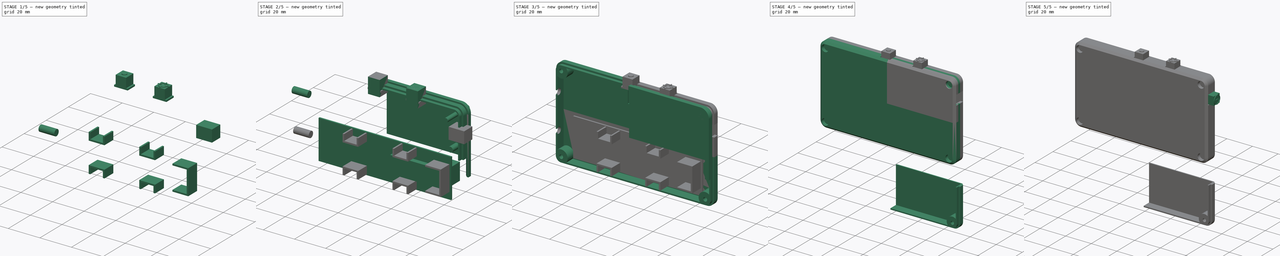
[diagram: build sequence overview — one tinted view per stage of 5, left to right]
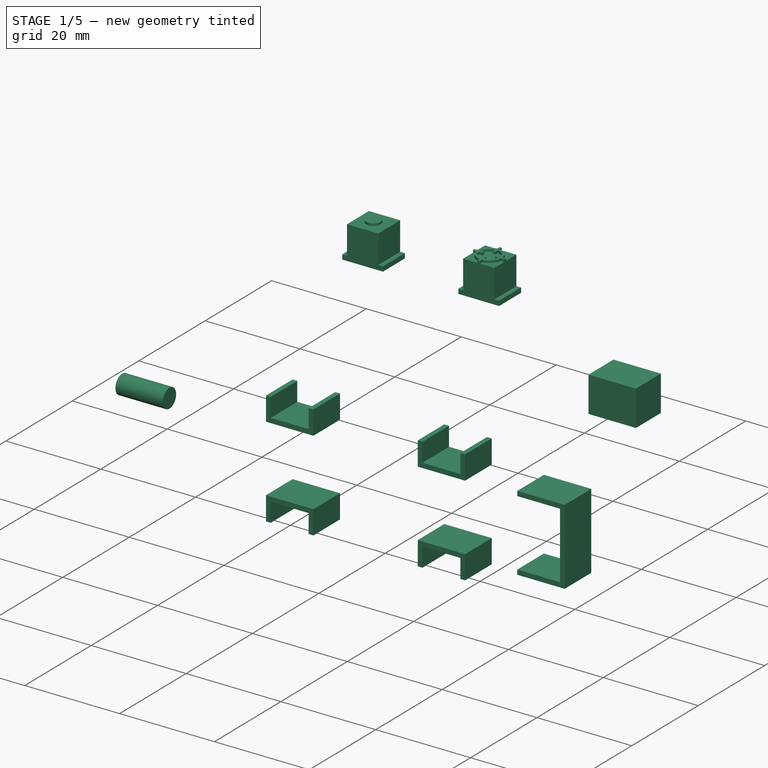
[diagram: stage 1 of 5 — iso view after this stage's code; geometry added in this stage tinted green]
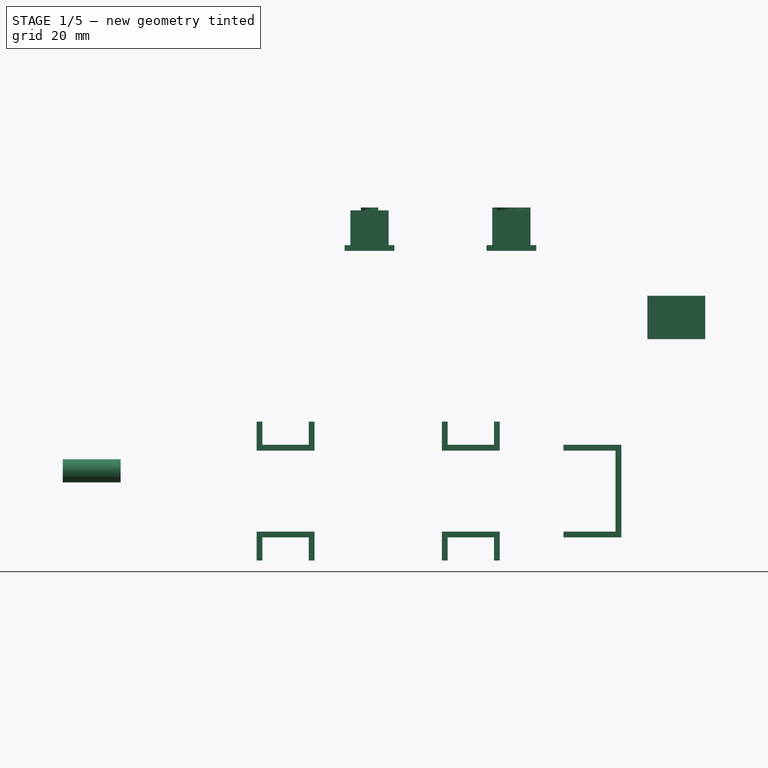
[diagram: stage 1 of 5 — front view after this stage's code; geometry added in this stage tinted green]
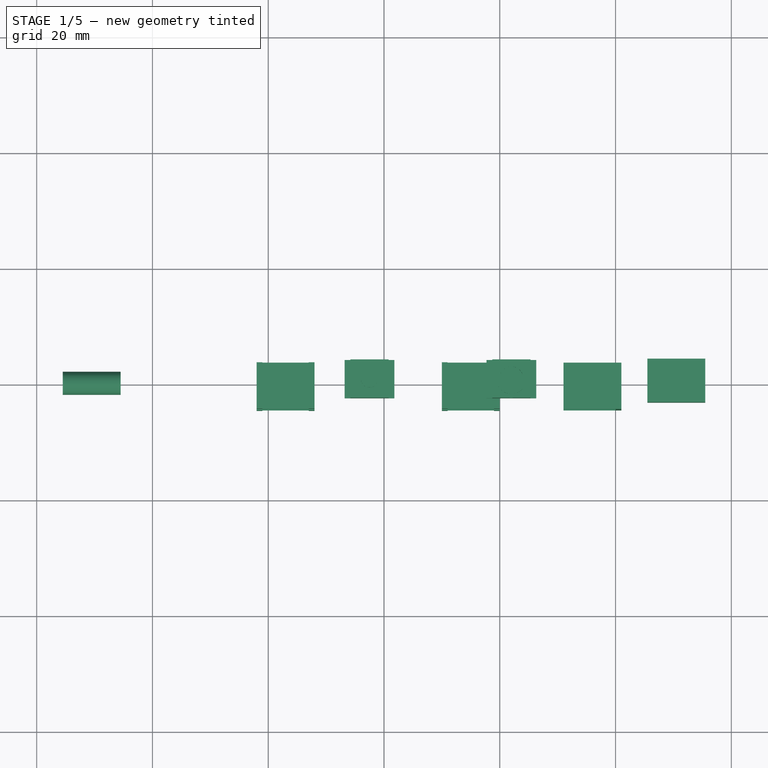
[diagram: stage 1 of 5 — top view after this stage's code; geometry added in this stage tinted green]
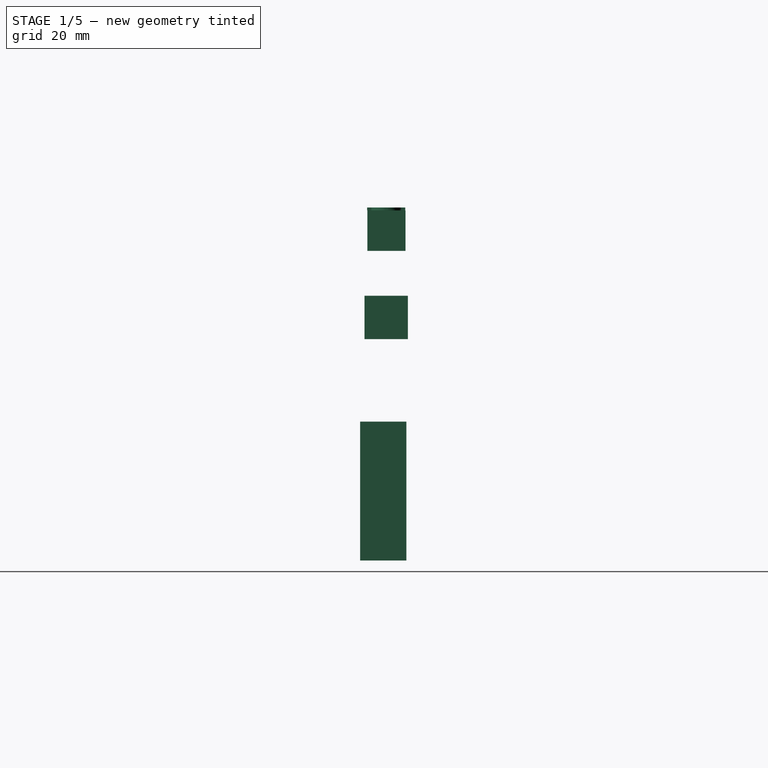
[diagram: stage 1 of 5 — right view after this stage's code; geometry added in this stage tinted green]
FCSTD DOCUMENT  (FreeCAD 0.19R24291 (Git))
Label: intervalometer
License: All rights reserved
LicenseURL: http://en.wikipedia.org/wiki/All_rights_reserved
objects: Sketcher::SketchObject×21, Part::Extrusion×18, Part::Box×11, Part::MultiFuse×11, PartDesign::FeatureBase×8, PartDesign::Body×8, Part::Mirroring×7, Part::Cut×6, Part::Compound×4, Part::Cylinder×3, Part::Sweep×2, Spreadsheet::Sheet×1, Part::Revolution×1
note: 100 computed .brp shape members not serialized (recipe doc carries the construction recipe); baked Part::Feature solids carry a one-line shape summary decoded from their .brp

FEATURE [Sketcher::SketchObject] Sketch013
  FullyConstrained = true
  Placement = pos=(0,-10,0) rot=(1,0,0;1.5708rad)
  sketch-geometry (8):
    g0: LineSegment StartX=-3.3 StartY=7 StartZ=0 EndX=3.3 EndY=7 EndZ=0
    g1: LineSegment StartX=3.3 StartY=7 StartZ=0 EndX=3.3 EndY=1 EndZ=0
    g2: LineSegment StartX=3.3 StartY=1 StartZ=0 EndX=4.3 EndY=1 EndZ=0
    g3: LineSegment StartX=4.3 StartY=1 StartZ=0 EndX=4.3 EndY=0 EndZ=0
    g4: LineSegment StartX=4.3 StartY=0 StartZ=0 EndX=-4.3 EndY=0 EndZ=0
    g5: LineSegment StartX=-4.3 StartY=0 StartZ=0 EndX=-4.3 EndY=1 EndZ=0
    g6: LineSegment StartX=-4.3 StartY=1 StartZ=0 EndX=-3.3 EndY=1 EndZ=0
    g7: LineSegment StartX=-3.3 StartY=1 StartZ=0 EndX=-3.3 EndY=7 EndZ=0
  constraints (24):
    c: Horizontal(g0)
    c: Coincident(g0,g1)
    c: Vertical(g1)
    c: Coincident(g1,g2)
    c: Horizontal(g2)
    c: Coincident(g2,g3)
    c: Vertical(g3)
    c: Coincident(g3,g4)
    c: Horizontal(g4)
    c: Coincident(g4,g5)
    c: Vertical(g5)
    c: Coincident(g5,g6)
    c: Horizontal(g6)
    c: Coincident(g6,g7)
    c: Coincident(g7,g0)
    c: Vertical(g7)
    c: DistanceX(g6,g0) = 6.6
    c: DistanceY(g6,g0) = 6
    c: DistanceX(g4,g6) = 1
    c: DistanceY(g4,g6) = 1
    c: DistanceX(g3,g1) = -1
    c: DistanceY(g3,g1) = 1
    c: PointOnObject(g-1,g4)
    c: DistanceX(g-1,g3) = 4.3
FEATURE [Part::Extrusion] Extrude014
  Base = -> Sketch013
  Dir = (0,-1,-2e-16)
  DirMode = 2
  FaceMakerClass = Part::FaceMakerBullseye
  LengthFwd = 0
  LengthRev = 6.6
  Placement = pos=(0,6.75,0) rot=(0,0,1;0rad)
  Solid = true
  Symmetric = false
FEATURE [Sketcher::SketchObject] Sketch014
  FullyConstrained = true
  Placement = pos=(0,0,-10) rot=(1,0,0;3.14159rad)
  sketch-geometry (4):
    g0: LineSegment StartX=-1.25 StartY=1.75 StartZ=0 EndX=1.25 EndY=1.75 EndZ=0
    g1: LineSegment StartX=1.25 StartY=1.75 StartZ=0 EndX=1.25 EndY=-1.75 EndZ=0
    g2: LineSegment StartX=1.25 StartY=-1.75 StartZ=0 EndX=-1.25 EndY=-1.75 EndZ=0
    g3: LineSegment StartX=-1.25 StartY=-1.75 StartZ=0 EndX=-1.25 EndY=1.75 EndZ=0
  constraints (12):
    c: Coincident(g0,g1)
    c: Coincident(g1,g2)
    c: Coincident(g2,g3)
    c: Coincident(g3,g0)
    c: Horizontal(g0)
    c: Horizontal(g2)
    c: Vertical(g1)
    c: Vertical(g3)
    c: DistanceX(g2,g0) = 2.5
    c: DistanceY(g2,g0) = 3.5
    c: DistanceX(g0,g-1) = -1.25
    c: DistanceY(g0,g-1) = -1.75
FEATURE [Part::Extrusion] Extrude015
  Base = -> Sketch014
  Dir = (0,1e-16,-1)
  DirMode = 2
  FaceMakerClass = Part::FaceMakerBullseye
  LengthFwd = 0
  LengthRev = 4.5
  Placement = pos=(0,0,10) rot=(0,0,1;0rad)
  Solid = true
  Symmetric = false
FEATURE [Part::Cut] Cut023
  Base = -> Extrude014
  Tool = -> Extrude015
FEATURE [Sketcher::SketchObject] Sketch037
  FullyConstrained = true
  Placement = pos=(35,0,0) rot=(0.57735,0.57735,0.57735;2.0944rad)
  sketch-geometry (4):
    g0: LineSegment StartX=-3.75 StartY=42.25 StartZ=0 EndX=3.75 EndY=42.25 EndZ=0
    g1: LineSegment StartX=3.75 StartY=42.25 StartZ=0 EndX=3.75 EndY=34.75 EndZ=0
    g2: LineSegment StartX=3.75 StartY=34.75 StartZ=0 EndX=-3.75 EndY=34.75 EndZ=0
    g3: LineSegment StartX=-3.75 StartY=34.75 StartZ=0 EndX=-3.75 EndY=42.25 EndZ=0
  constraints (12):
    c: Coincident(g0,g1)
    c: Coincident(g1,g2)
    c: Coincident(g2,g3)
    c: Coincident(g3,g0)
    c: Horizontal(g0)
    c: Horizontal(g2)
    c: Vertical(g1)
    c: Vertical(g3)
    c: DistanceX(g2,g0) = 7.5
    c: DistanceY(g2,g0) = 7.5
    c: DistanceX(g2,g-1) = 3.75
    c: DistanceY(g-1,g1) = 34.75
FEATURE [Part::Extrusion] Extrude045  label="switch hole002"
  Base = -> Sketch037
  Dir = (1,0,0)
  DirMode = 2
  FaceMakerClass = Part::FaceMakerBullseye
  LengthFwd = 10
  LengthRev = 0
  Placement = pos=(-9.5,0,0) rot=(0,0,1;0rad)
  Solid = true
  Symmetric = false
FEATURE [PartDesign::Body] Body005  label="switch hole001"
  BaseFeature = -> Extrude045
  Group = -> [Clone005]
  Origin = -> Origin005
  Placement = pos=(40.5,0,22) rot=(0,-1,0;1.5708rad)
  Tip = -> Clone005
FEATURE [PartDesign::FeatureBase] Clone006
  BaseFeature = -> Extrude045
  Placement = pos=(-9.5,0,0) rot=(0,0,1;0rad)
FEATURE [PartDesign::Body] Body006  label="switch hole"
  BaseFeature = -> Extrude045
  Group = -> [Clone006]
  Origin = -> Origin006
  Placement = pos=(16,0,22) rot=(0,-1,0;1.5708rad)
  Tip = -> Clone006
FEATURE [PartDesign::FeatureBase] Clone007
  BaseFeature = -> Cut023
FEATURE [PartDesign::Body] Body007  label="cap002"
  BaseFeature = -> Cut023
  Group = -> [Clone007]
  Origin = -> Origin007
  Tip = -> Clone007
FEATURE [PartDesign::FeatureBase] Clone008
  BaseFeature = -> Body007
FEATURE [PartDesign::Body] Body008  label="cap003"
  BaseFeature = -> Body007
  Group = -> [Clone008]
  Origin = -> Origin008
  Tip = -> Clone008
FEATURE [Sketcher::SketchObject] Sketch038  label="power icon002"
  FullyConstrained = false
  Placement = pos=(0,0,20) rot=(0,0,1;0rad)
  sketch-geometry (2):
    g0: Circle CenterX=0 CenterY=0 CenterZ=0 NormalX=0 NormalY=0 NormalZ=1 AngleXU=0 Radius=2.6
    g1: Circle CenterX=0 CenterY=0 CenterZ=0 NormalX=0 NormalY=0 NormalZ=1 AngleXU=0 Radius=2.1
  constraints (3):
    c: Coincident(g1,g0)
    c: Radius(g1) = 2.1
    c: Radius(g0) = 2.6
FEATURE [Sketcher::SketchObject] Sketch039  label="power icon003"
  FullyConstrained = true
  Placement = pos=(0,0,20) rot=(0,0,1;0rad)
  sketch-geometry (1):
    g0: Circle CenterX=0 CenterY=0 CenterZ=0 NormalX=0 NormalY=0 NormalZ=1 AngleXU=0 Radius=1.5
  constraints (2):
    c: Coincident(g0,g-1)
    c: Radius(g0) = 1.5
FEATURE [Sketcher::SketchObject] Sketch040  label="power icon004"
  FullyConstrained = true
  Placement = pos=(0,0,20) rot=(0,0,1;0rad)
  sketch-geometry (16):
    g0: LineSegment StartX=-0.25 StartY=3.3 StartZ=0 EndX=0.25 EndY=3.3 EndZ=0
    g1: LineSegment StartX=0.25 StartY=-3.3 StartZ=0 EndX=-0.25 EndY=-3.3 EndZ=0
    g2: LineSegment StartX=-3.3 StartY=0.25 StartZ=0 EndX=-3.3 EndY=-0.25 EndZ=0
    g3: LineSegment StartX=3.3 StartY=0.25 StartZ=0 EndX=3.3 EndY=-0.25 EndZ=0
    g4: LineSegment StartX=-3.3 StartY=0.25 StartZ=0 EndX=-1.3 EndY=0.25 EndZ=0
    g5: LineSegment StartX=-1.3 StartY=0.25 StartZ=0 EndX=-1.3 EndY=-0.25 EndZ=0
    g6: LineSegment StartX=-1.3 StartY=-0.25 StartZ=0 EndX=-3.3 EndY=-0.25 EndZ=0
    g7: LineSegment StartX=-0.25 StartY=3.3 StartZ=0 EndX=-0.25 EndY=1.3 EndZ=0
    g8: LineSegment StartX=-0.25 StartY=1.3 StartZ=0 EndX=0.25 EndY=1.3 EndZ=0
    g9: LineSegment StartX=0.25 StartY=1.3 StartZ=0 EndX=0.25 EndY=3.3 EndZ=0
    g10: LineSegment StartX=3.3 StartY=0.25 StartZ=0 EndX=1.3 EndY=0.25 EndZ=0
    g11: LineSegment StartX=1.3 StartY=0.25 StartZ=0 EndX=1.3 EndY=-0.25 EndZ=0
    g12: LineSegment StartX=1.3 StartY=-0.25 StartZ=0 EndX=3.3 EndY=-0.25 EndZ=0
    g13: LineSegment StartX=-0.25 StartY=-3.3 StartZ=0 EndX=-0.25 EndY=-1.3 EndZ=0
    g14: LineSegment StartX=-0.25 StartY=-1.3 StartZ=0 EndX=0.25 EndY=-1.3 EndZ=0
    g15: LineSegment StartX=0.25 StartY=-1.3 StartZ=0 EndX=0.25 EndY=-3.3 EndZ=0
  constraints (48):
    c: Horizontal(g0)
    c: Horizontal(g1)
    c: Vertical(g2)
    c: Coincident(g2,g4)
    c: Horizontal(g4)
    c: Coincident(g4,g5)
    c: Vertical(g5)
    c: Coincident(g5,g6)
    c: Coincident(g6,g2)
    c: Horizontal(g6)
    c: Coincident(g0,g7)
    c: Vertical(g7)
    c: Coincident(g7,g8)
    c: Horizontal(g8)
    c: Coincident(g8,g9)
    c: Coincident(g9,g0)
    c: Vertical(g9)
    c: Coincident(g3,g10)
    c: Horizontal(g10)
    c: Coincident(g10,g11)
    c: Coincident(g11,g12)
    c: Coincident(g12,g3)
    c: Horizontal(g12)
    c: DistanceX(g11,g3) = 2
    c: DistanceY(g11,g3) = 0.5
    c: DistanceX(g3,g-1) = -3.3
    c: Vertical(g11)
    c: DistanceX(g2,g4) = 2
    c: DistanceY(g2,g4) = 0.5
    c: DistanceY(g5,g-1) = 0.25
    c: DistanceX(g2,g-1) = 3.3
    c: DistanceX(g7,g0) = 0.5
    c: DistanceY(g7,g0) = 2
    c: DistanceX(g8,g-1) = -0.25
    c: DistanceY(g-1,g0) = 3.3
    c: Coincident(g1,g13)
    c: Vertical(g13)
    c: Coincident(g13,g14)
    c: Horizontal(g14)
    c: Coincident(g14,g15)
    c: Coincident(g15,g1)
    c: Vertical(g15)
    c: DistanceX(g1,g14) = 0.5
    c: DistanceY(g1,g14) = 2
    c: DistanceY(g1,g-1) = 3.3
    c: DistanceX(g13,g-1) = 0.25
    c: DistanceY(g11,g-1) = 0.25
    c: Vertical(g3)
FEATURE [Part::Extrusion] Extrude
  Base = -> Sketch038
  Dir = (0,0,1)
  DirMode = 2
  FaceMakerClass = Part::FaceMakerBullseye
  LengthFwd = 0.5
  LengthRev = 0
  Placement = pos=(0,0,-13) rot=(0,0,1;0rad)
  Solid = true
  Symmetric = false
FEATURE [Part::Extrusion] Extrude046
  Base = -> Sketch040
  Dir = (0,0,1)
  DirMode = 2
  FaceMakerClass = Part::FaceMakerBullseye
  LengthFwd = 0.5
  LengthRev = 0
  Placement = pos=(0,0,-13) rot=(0,0,1;0rad)
  Solid = true
  Symmetric = false
FEATURE [Part::Extrusion] Extrude047
  Base = -> Sketch039
  Dir = (0,0,1)
  DirMode = 2
  FaceMakerClass = Part::FaceMakerBullseye
  LengthFwd = 0.5
  LengthRev = 0
  Placement = pos=(0,0,-13) rot=(0,0,1;0rad)
  Solid = true
  Symmetric = false
FEATURE [Part::MultiFuse] Fusion034  label="focus"
  Placement = pos=(2,0,50) rot=(0,0,1;0rad)
  Shapes = -> [Extrude,Extrude046,Body007]
FEATURE [Part::MultiFuse] Fusion035  label="shutter"
  Placement = pos=(-22.5,0,50) rot=(0,0,1;0rad)
  Shapes = -> [Extrude047,Body008]
FEATURE [Sketcher::SketchObject] Sketch
  FullyConstrained = true
  Placement = pos=(0,0,0) rot=(1,0,0;1.5708rad)
  sketch-geometry (40):
    g0: LineSegment StartX=21 StartY=0.5 StartZ=0 EndX=11 EndY=0.5 EndZ=0
    g1: LineSegment StartX=11 StartY=0.5 StartZ=0 EndX=11 EndY=1.5 EndZ=0
    g2: LineSegment StartX=11 StartY=1.5 StartZ=0 EndX=20 EndY=1.5 EndZ=0
    g3: LineSegment StartX=20 StartY=1.5 StartZ=0 EndX=20 EndY=15.5 EndZ=0
    g4: LineSegment StartX=20 StartY=15.5 StartZ=0 EndX=11 EndY=15.5 EndZ=0
    g5: LineSegment StartX=11 StartY=15.5 StartZ=0 EndX=11 EndY=16.5 EndZ=0
    g6: LineSegment StartX=11 StartY=16.5 StartZ=0 EndX=21 EndY=16.5 EndZ=0
    g7: LineSegment StartX=21 StartY=16.5 StartZ=0 EndX=21 EndY=0.5 EndZ=0
    g8: LineSegment StartX=-41 StartY=0.5 StartZ=0 EndX=-33 EndY=0.5 EndZ=0
    g9: LineSegment StartX=-32 StartY=1.5 StartZ=0 EndX=-42 EndY=1.5 EndZ=0
    g10: LineSegment StartX=-42 StartY=15.5 StartZ=0 EndX=-32 EndY=15.5 EndZ=0
    g11: LineSegment StartX=-33 StartY=16.5 StartZ=0 EndX=-41 EndY=16.5 EndZ=0
    g12: LineSegment StartX=-8e-16 StartY=15.5 StartZ=0 EndX=-10 EndY=15.5 EndZ=0
    g13: LineSegment StartX=-10 StartY=15.5 StartZ=0 EndX=-10 EndY=20.5 EndZ=0
    g14: LineSegment StartX=-10 StartY=20.5 StartZ=0 EndX=-9 EndY=20.5 EndZ=0
    g15: LineSegment StartX=-9 StartY=20.5 StartZ=0 EndX=-9 EndY=16.5 EndZ=0
    g16: LineSegment StartX=-9 StartY=16.5 StartZ=0 EndX=-1 EndY=16.5 EndZ=0
    g17: LineSegment StartX=-9e-16 StartY=1.5 StartZ=0 EndX=-10 EndY=1.5 EndZ=0
    g18: LineSegment StartX=-10 StartY=1.5 StartZ=0 EndX=-10 EndY=-3.5 EndZ=0
    g19: LineSegment StartX=-10 StartY=-3.5 StartZ=0 EndX=-9 EndY=-3.5 EndZ=0
    g20: LineSegment StartX=-9 StartY=-3.5 StartZ=0 EndX=-9 EndY=0.5 EndZ=0
    g21: LineSegment StartX=-9 StartY=0.5 StartZ=0 EndX=-1 EndY=0.5 EndZ=0
    g22: LineSegment StartX=-42 StartY=15.5 StartZ=0 EndX=-42 EndY=20.5 EndZ=0
    g23: LineSegment StartX=-42 StartY=20.5 StartZ=0 EndX=-41 EndY=20.5 EndZ=0
    g24: LineSegment StartX=-41 StartY=20.5 StartZ=0 EndX=-41 EndY=16.5 EndZ=0
    g25: LineSegment StartX=-42 StartY=1.5 StartZ=0 EndX=-42 EndY=-3.5 EndZ=0
    g26: LineSegment StartX=-42 StartY=-3.5 StartZ=0 EndX=-41 EndY=-3.5 EndZ=0
    g27: LineSegment StartX=-41 StartY=-3.5 StartZ=0 EndX=-41 EndY=0.5 EndZ=0
    g28: LineSegment StartX=-33 StartY=16.5 StartZ=0 EndX=-33 EndY=20.5 EndZ=0
    g29: LineSegment StartX=-33 StartY=20.5 StartZ=0 EndX=-32 EndY=20.5 EndZ=0
    g30: LineSegment StartX=-32 StartY=20.5 StartZ=0 EndX=-32 EndY=15.5 EndZ=0
    g31: LineSegment StartX=-33 StartY=0.5 StartZ=0 EndX=-33 EndY=-3.5 EndZ=0
    g32: LineSegment StartX=-33 StartY=-3.5 StartZ=0 EndX=-32 EndY=-3.5 EndZ=0
    g33: LineSegment StartX=-32 StartY=-3.5 StartZ=0 EndX=-32 EndY=1.5 EndZ=0
    g34: LineSegment StartX=-1 StartY=0.5 StartZ=0 EndX=-1 EndY=-3.5 EndZ=0
    g35: LineSegment StartX=-1 StartY=-3.5 StartZ=0 EndX=-9e-16 EndY=-3.5 EndZ=0
    g36: LineSegment StartX=-9e-16 StartY=-3.5 StartZ=0 EndX=-9e-16 EndY=1.5 EndZ=0
    g37: LineSegment StartX=-1 StartY=16.5 StartZ=0 EndX=-1 EndY=20.5 EndZ=0
    g38: LineSegment StartX=-1 StartY=20.5 StartZ=0 EndX=-9e-16 EndY=20.5 EndZ=0
    g39: LineSegment StartX=-8e-16 StartY=20.5 StartZ=0 EndX=-8e-16 EndY=15.5 EndZ=0
  constraints (120):
    c: Horizontal(g0)
    c: Coincident(g0,g1)
    c: Vertical(g1)
    c: Coincident(g1,g2)
    c: Horizontal(g2)
    c: Coincident(g2,g3)
    c: Vertical(g3)
    c: Coincident(g3,g4)
    c: Horizontal(g4)
    c: Coincident(g4,g5)
    c: Vertical(g5)
    c: Coincident(g5,g6)
    c: Horizontal(g6)
    c: Coincident(g6,g7)
    c: Coincident(g7,g0)
    c: Vertical(g7)
    c: DistanceX(g0,g6) = 10
    c: DistanceY(g0,g6) = 16
    c: DistanceX(g3,g6) = 1
    c: DistanceY(g3,g6) = 1
    c: DistanceY(g0,g1) = 1
    c: Vertical(g4,g1)
    c: Horizontal(g8)
    c: Horizontal(g9)
    c: Horizontal(g10)
    c: Horizontal(g11)
    c: DistanceY(g8,g9) = 1
    c: DistanceY(g10,g11) = 1
    c: Vertical(g10,g9)
    c: Horizontal(g12)
    c: Coincident(g12,g13)
    c: Vertical(g13)
    c: Coincident(g13,g14)
    c: Horizontal(g14)
    c: Coincident(g14,g15)
    c: Vertical(g15)
    c: Coincident(g15,g16)
    c: Horizontal(g16)
    c: DistanceX(g12,g13) = -10
    c: DistanceY(g12,g13) = 5
    c: DistanceX(g12,g15) = 1
    c: DistanceY(g12,g15) = 1
    c: DistanceX(g12,g6) = 31
    c: Horizontal(g17)
    c: Coincident(g17,g18)
    c: Vertical(g18)
    c: Coincident(g18,g19)
    c: Horizontal(g19)
    c: Coincident(g19,g20)
    c: Vertical(g20)
    c: Coincident(g20,g21)
    c: Horizontal(g21)
    c: DistanceX(g18,g17) = 10
    c: DistanceY(g18,g17) = 5
    c: DistanceX(g20,g17) = -1
    c: DistanceY(g20,g17) = 1
    c: Vertical(g17,g12)
    c: Coincident(g10,g22)
    c: Vertical(g22)
    c: Coincident(g22,g23)
    c: Horizontal(g23)
    c: Coincident(g23,g24)
    c: Coincident(g24,g11)
    c: Vertical(g24)
    c: DistanceX(g10,g23) = 1
    c: DistanceY(g10,g23) = 5
    c: DistanceX(g9,g0) = 63
    c: DistanceX(g-1,g0) = 21
    c: DistanceX(g10,g10) = 10
    c: Coincident(g9,g25)
    c: Vertical(g25)
    c: Coincident(g25,g26)
    c: Horizontal(g26)
    c: Coincident(g26,g27)
    c: Coincident(g27,g8)
    c: Vertical(g27)
    c: Vertical(g10,g9)
    c: Coincident(g11,g28)
    c: Vertical(g28)
    c: Coincident(g28,g29)
    c: Horizontal(g29)
    c: Coincident(g29,g30)
    c: Coincident(g30,g10)
    c: Vertical(g30)
    c: Coincident(g8,g31)
    c: Vertical(g31)
    c: Coincident(g31,g32)
    c: Horizontal(g32)
    c: Coincident(g32,g33)
    c: Coincident(g33,g9)
    c: Vertical(g33)
    c: DistanceX(g31,g32) = 1
    c: DistanceY(g25,g9) = 5
    c: DistanceX(g28,g29) = 1
    c: Coincident(g21,g34)
    c: Vertical(g34)
    c: Coincident(g34,g35)
    c: Coincident(g35,g36)
    c: Coincident(g36,g17)
    c: Vertical(g36)
    c: Horizontal(g35)
    c: DistanceX(g34,g35) = 1
    c: Coincident(g16,g37)
    c: Vertical(g37)
    c: Coincident(g37,g38)
    c: Horizontal(g38)
    c: Coincident(g38,g39)
    c: Coincident(g39,g12)
    c: Vertical(g39)
    c: DistanceX(g37,g38) = 1
    c: DistanceY(g-1,g0) = 0.5
    c: Horizontal(g12,g4)
    c: Horizontal(g17,g1)
    c: Horizontal(g34,g19)
    c: Horizontal(g37,g14)
    c: Horizontal(g28,g23)
    c: Horizontal(g10,g12)
    c: Horizontal(g9,g17)
    c: Horizontal(g31,g26)
    c: DistanceX(g25,g26) = 1
FEATURE [Part::Extrusion] Extrude048  label="support"
  Base = -> Sketch
  Dir = (0,-1,3e-16)
  DirMode = 2
  FaceMakerClass = Part::FaceMakerBullseye
  LengthFwd = 0
  LengthRev = 8
  Placement = pos=(0,-4.5,0) rot=(0,0,1;0rad)
  Solid = true
  Symmetric = false
FEATURE [Part::Cylinder] Cylinder003  label="cable"
  Angle = 360
  AttacherType = Attacher::AttachEngine3D
  Height = 10
  Placement = pos=(-65.5,4e-15,12) rot=(0.57735,-0.57735,-0.57735;2.0944rad)
  Radius = 2
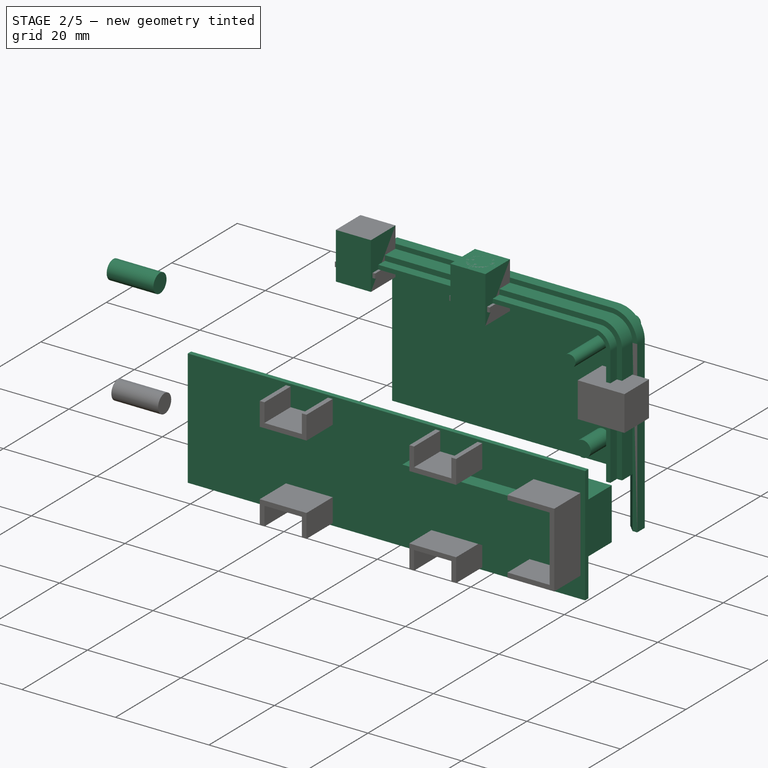
[diagram: stage 2 of 5 — iso view after this stage's code; geometry added in this stage tinted green]
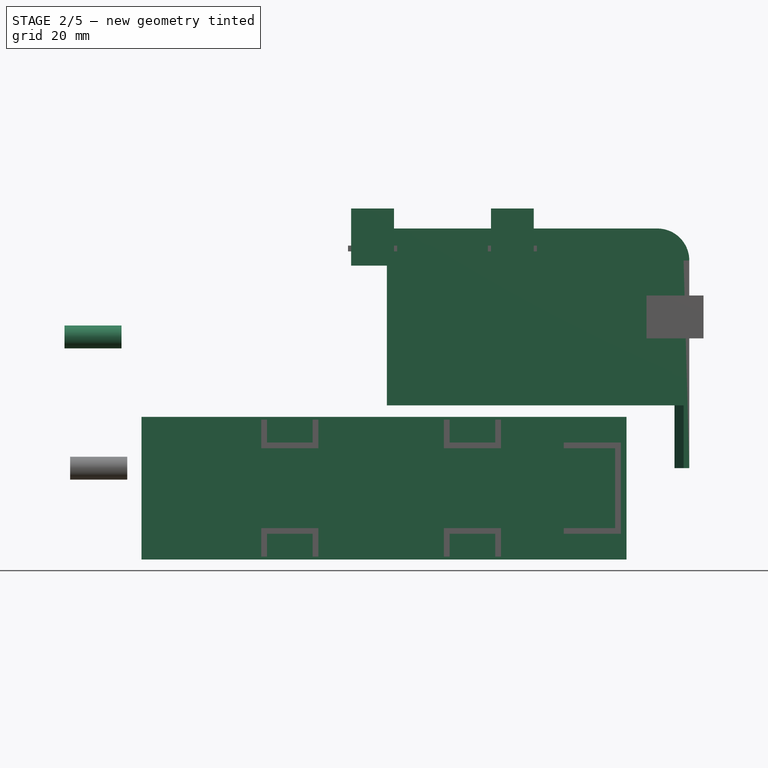
[diagram: stage 2 of 5 — front view after this stage's code; geometry added in this stage tinted green]
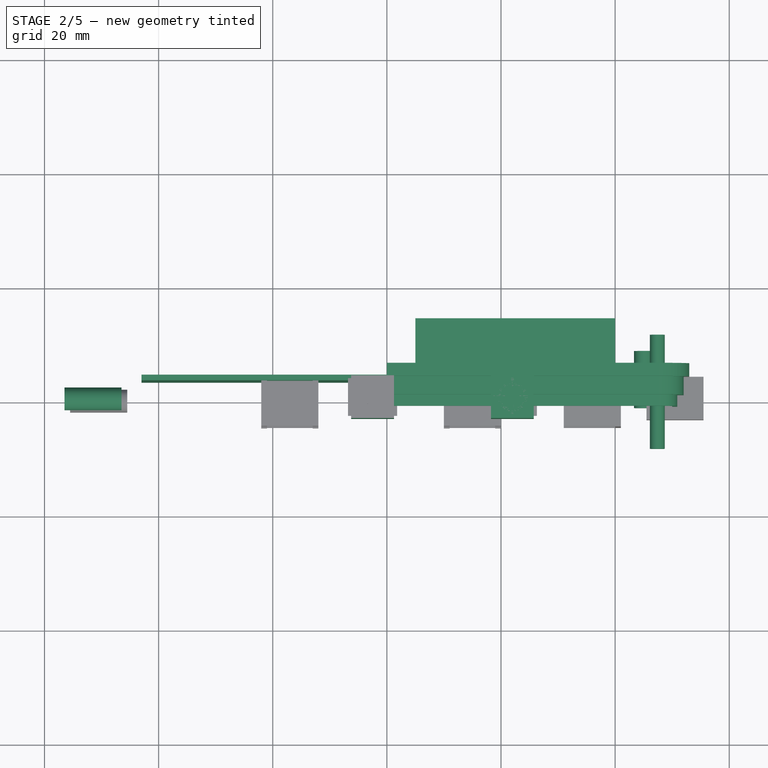
[diagram: stage 2 of 5 — top view after this stage's code; geometry added in this stage tinted green]
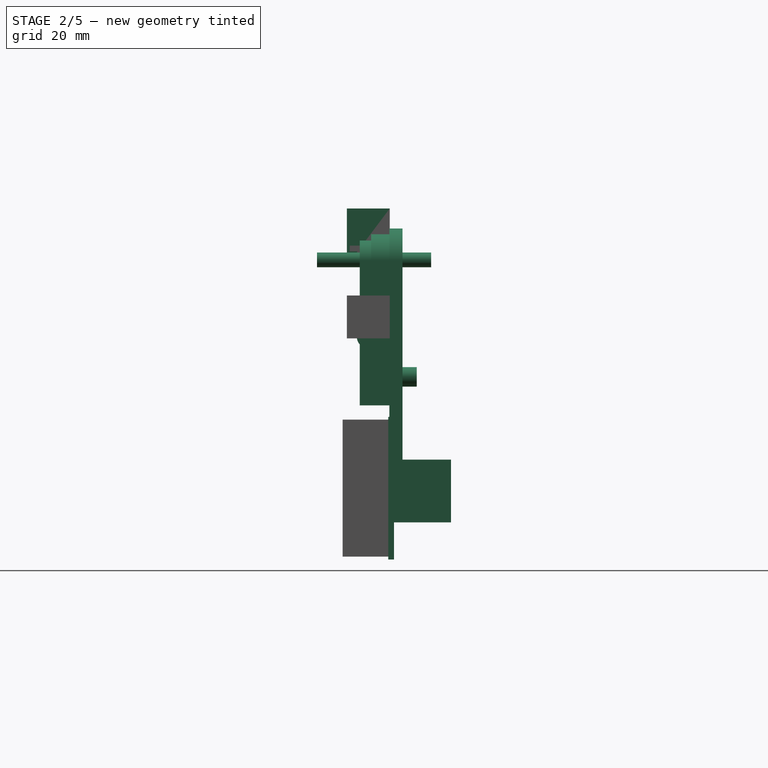
[diagram: stage 2 of 5 — right view after this stage's code; geometry added in this stage tinted green]
FEATURE [Sketcher::SketchObject] Sketch005
  FullyConstrained = true
  Placement = pos=(0,-5,0) rot=(1,0,0;1.5708rad)
  expr: Constraints[0] = Spreadsheet.screw_r3
  sketch-geometry (1):
    g0: Circle CenterX=27.4 CenterY=48.5 CenterZ=0 NormalX=0 NormalY=0 NormalZ=1 AngleXU=0 Radius=1.3
  constraints (3):
    c: Radius(g0) = 1.3
    c: DistanceX(g0,g-1) = -27.4
    c: DistanceY(g-1,g0) = 48.5
FEATURE [Part::Extrusion] Extrude003  label="top screw hole"
  Base = -> Sketch005
  Dir = (0,-1,2e-16)
  DirMode = 2
  FaceMakerClass = Part::FaceMakerBullseye
  LengthFwd = 0
  LengthRev = 20
  Placement = pos=(0,-4,0) rot=(0,0,1;0rad)
  Solid = true
  Symmetric = false
FEATURE [Sketcher::SketchObject] Sketch028
  FullyConstrained = true
  Placement = pos=(0,-10,0) rot=(1,0,0;1.5708rad)
  expr: Constraints[19] = Spreadsheet.screw_r1
  expr: Constraints[20] = Spreadsheet.w / 2
  expr: Constraints[21] = Spreadsheet.height / 2
  sketch-geometry (8):
    g0: ArcOfCircle CenterX=27.4 CenterY=48.4 CenterZ=0 NormalX=0 NormalY=0 NormalZ=1 AngleXU=0 Radius=4.6 StartAngle=0 EndAngle=1.5708
    g1: LineSegment StartX=32 StartY=48.4 StartZ=0 EndX=32 EndY=23 EndZ=0
    g2: LineSegment StartX=32 StartY=23 StartZ=0 EndX=30 EndY=23 EndZ=0
    g3: LineSegment StartX=30 StartY=23 StartZ=0 EndX=30 EndY=48.4 EndZ=0
    g4: LineSegment StartX=27.4 StartY=53 StartZ=0 EndX=-20 EndY=53 EndZ=0
    g5: LineSegment StartX=-20 StartY=53 StartZ=0 EndX=-20 EndY=51 EndZ=0
    g6: LineSegment StartX=-20 StartY=51 StartZ=0 EndX=27.4 EndY=51 EndZ=0
    g7: ArcOfCircle CenterX=27.4 CenterY=48.4 CenterZ=0 NormalX=0 NormalY=0 NormalZ=1 AngleXU=0 Radius=2.6 StartAngle=0 EndAngle=1.5708
  constraints (23):
    c: Horizontal(g0,g0)
    c: Vertical(g0,g0)
    c: Tangent(g0,g1) = 1.5708
    c: Coincident(g1,g2)
    c: Horizontal(g2)
    c: Coincident(g2,g3)
    c: Vertical(g3)
    c: Tangent(g0,g4) = -1.5708
    c: Coincident(g4,g5)
    c: Vertical(g5)
    c: Coincident(g5,g6)
    c: Horizontal(g6)
    c: Coincident(g7,g0)
    c: Coincident(g7,g6)
    c: Coincident(g7,g3)
    c: Horizontal(g3,g0)
    c: Vertical(g6,g0)
    c: DistanceX(g2,g1) = 2
    c: DistanceX(g-1,g2) = 30
    c: Radius(g7) = 2.6
    c: DistanceX(g5,g3) = 50
    c: DistanceY(g2,g6) = 28
    c: DistanceY(g-1,g2) = 23
FEATURE [Part::Box] Box  label="circuit"
  AttacherType = Attacher::AttachEngine3D
  Height = 85
  Length = 25
  Placement = pos=(-34,3.5,-1) rot=(0,0,1;0rad)
  Width = 1
FEATURE [Sketcher::SketchObject] Sketch029
  FullyConstrained = true
  Placement = pos=(0,-10,0) rot=(1,0,0;1.5708rad)
  expr: Constraints[19] = Spreadsheet.screw_r1
  expr: Constraints[20] = Spreadsheet.w / 2
  expr: Constraints[21] = Spreadsheet.height / 2
  sketch-geometry (8):
    g0: ArcOfCircle CenterX=27.4 CenterY=48.4 CenterZ=0 NormalX=0 NormalY=0 NormalZ=1 AngleXU=0 Radius=3.5 StartAngle=0 EndAngle=1.5708
    g1: LineSegment StartX=30.9 StartY=48.4 StartZ=0 EndX=30.9 EndY=23 EndZ=0
    g2: LineSegment StartX=30.9 StartY=23 StartZ=0 EndX=30 EndY=23 EndZ=0
    g3: LineSegment StartX=30 StartY=23 StartZ=0 EndX=30 EndY=48.4 EndZ=0
    g4: LineSegment StartX=27.4 StartY=51.9 StartZ=0 EndX=-20 EndY=51.9 EndZ=0
    g5: LineSegment StartX=-20 StartY=51.9 StartZ=0 EndX=-20 EndY=51 EndZ=0
    g6: LineSegment StartX=-20 StartY=51 StartZ=0 EndX=27.4 EndY=51 EndZ=0
    g7: ArcOfCircle CenterX=27.4 CenterY=48.4 CenterZ=0 NormalX=0 NormalY=0 NormalZ=1 AngleXU=0 Radius=2.6 StartAngle=0 EndAngle=1.5708
  constraints (23):
    c: Horizontal(g0,g0)
    c: Vertical(g0,g0)
    c: Tangent(g0,g1) = 1.5708
    c: Coincident(g1,g2)
    c: Horizontal(g2)
    c: Coincident(g2,g3)
    c: Vertical(g3)
    c: Tangent(g0,g4) = -1.5708
    c: Coincident(g4,g5)
    c: Vertical(g5)
    c: Coincident(g5,g6)
    c: Horizontal(g6)
    c: Coincident(g7,g0)
    c: Coincident(g7,g6)
    c: Coincident(g7,g3)
    c: Horizontal(g3,g0)
    c: Vertical(g6,g0)
    c: DistanceX(g2,g1) = 0.9
    c: DistanceX(g-1,g2) = 30
    c: Radius(g7) = 2.6
    c: DistanceX(g5,g3) = 50
    c: DistanceY(g2,g6) = 28
    c: DistanceY(g-1,g2) = 23
FEATURE [Sketcher::SketchObject] Sketch030
  FullyConstrained = true
  Placement = pos=(0,-10,0) rot=(1,0,0;1.5708rad)
  expr: Constraints[19] = Spreadsheet.screw_r1 + 1.1
  expr: Constraints[20] = Spreadsheet.w / 2 + 1.1
  expr: Constraints[21] = Spreadsheet.height / 2 + 1.1
  sketch-geometry (8):
    g0: ArcOfCircle CenterX=27.4 CenterY=48.4 CenterZ=0 NormalX=0 NormalY=0 NormalZ=1 AngleXU=0 Radius=4.6 StartAngle=0 EndAngle=1.5708
    g1: LineSegment StartX=32 StartY=48.4 StartZ=0 EndX=32 EndY=23 EndZ=0
    g2: LineSegment StartX=32 StartY=23 StartZ=0 EndX=31.1 EndY=23 EndZ=0
    g3: LineSegment StartX=31.1 StartY=23 StartZ=0 EndX=31.1 EndY=48.4 EndZ=0
    g4: LineSegment StartX=27.4 StartY=53 StartZ=0 EndX=-20 EndY=53 EndZ=0
    g5: LineSegment StartX=-20 StartY=53 StartZ=0 EndX=-20 EndY=52.1 EndZ=0
    g6: LineSegment StartX=-20 StartY=52.1 StartZ=0 EndX=27.4 EndY=52.1 EndZ=0
    g7: ArcOfCircle CenterX=27.4 CenterY=48.4 CenterZ=0 NormalX=0 NormalY=0 NormalZ=1 AngleXU=0 Radius=3.7 StartAngle=0 EndAngle=1.5708
  constraints (23):
    c: Horizontal(g0,g0)
    c: Vertical(g0,g0)
    c: Tangent(g0,g1) = 1.5708
    c: Coincident(g1,g2)
    c: Horizontal(g2)
    c: Coincident(g2,g3)
    c: Vertical(g3)
    c: Tangent(g0,g4) = -1.5708
    c: Coincident(g4,g5)
    c: Vertical(g5)
    c: Coincident(g5,g6)
    c: Horizontal(g6)
    c: Coincident(g7,g0)
    c: Coincident(g7,g6)
    c: Coincident(g7,g3)
    c: Horizontal(g3,g0)
    c: Vertical(g6,g0)
    c: DistanceX(g2,g1) = 0.9
    c: DistanceX(g-1,g2) = 31.1
    c: Radius(g7) = 3.7
    c: DistanceX(g5,g3) = 51.1
    c: DistanceY(g2,g6) = 29.1
    c: DistanceY(g-1,g2) = 23
FEATURE [Part::Extrusion] Extrude037  label="top004"
  Base = -> Sketch029
  Dir = (0,-1,2e-16)
  DirMode = 2
  FaceMakerClass = Part::FaceMakerBullseye
  LengthFwd = 2
  LengthRev = 0
  Placement = pos=(0,10.5,0) rot=(0,0,1;0rad)
  Solid = true
  Symmetric = false
FEATURE [Part::Extrusion] Extrude039  label="top003"
  Base = -> Sketch028
  Dir = (0,-1,2e-16)
  DirMode = 2
  FaceMakerClass = Part::FaceMakerBullseye
  LengthFwd = 4
  LengthRev = 0
  Placement = pos=(0,14.5,0) rot=(0,0,1;0rad)
  Solid = true
  Symmetric = false
FEATURE [Part::Extrusion] Extrude042  label="top002"
  Base = -> Sketch031
  Dir = (0,-1,2e-16)
  DirMode = 2
  FaceMakerClass = Part::FaceMakerBullseye
  LengthFwd = 0.8
  LengthRev = 0
  Placement = pos=(0,15.3,0) rot=(0,0,1;0rad)
  Solid = true
  Symmetric = false
FEATURE [Sketcher::SketchObject] Sketch035
  FullyConstrained = true
  Placement = pos=(0,0,0) rot=(0.57735,0.57735,0.57735;2.0944rad)
  sketch-geometry (5):
    g0: LineSegment StartX=5.3 StartY=51.4 StartZ=0 EndX=3.7 EndY=53 EndZ=0
    g1: LineSegment StartX=3.7 StartY=53 StartZ=0 EndX=3.7 EndY=54 EndZ=0
    g2: LineSegment StartX=3.7 StartY=54 StartZ=0 EndX=6 EndY=54 EndZ=0
    g3: LineSegment StartX=6 StartY=54 StartZ=0 EndX=6 EndY=51.4 EndZ=0
    g4: LineSegment StartX=6 StartY=51.4 StartZ=0 EndX=5.3 EndY=51.4 EndZ=0
  constraints (15):
    c: DistanceX(g0,g0) = -1.6
    c: DistanceY(g0,g0) = 1.6
    c: Coincident(g0,g1)
    c: Vertical(g1)
    c: Coincident(g1,g2)
    c: Horizontal(g2)
    c: Coincident(g2,g3)
    c: Vertical(g3)
    c: Coincident(g4,g3)
    c: Coincident(g4,g0)
    c: Horizontal(g4)
    c: DistanceX(g-1,g0) = 5.3
    c: DistanceX(g0,g3) = 0.7
    c: DistanceY(g0,g1) = 1
    c: DistanceY(g-1,g2) = 54
FEATURE [Part::Sweep] Sweep001
  Frenet = false
  Sections = -> [Sketch035]
  Solid = true
  Spine = -> Sketch034
  Transition = 1
FEATURE [Part::MultiFuse] Fusion030
  Shapes = -> [Extrude003,Sweep001]
FEATURE [Part::Cylinder] Cylinder001  label="battery cable"
  Angle = 360
  AttacherType = Attacher::AttachEngine3D
  Height = 10
  Placement = pos=(-66.5,0,35) rot=(0,-1,0;1.5708rad)
  Radius = 2
FEATURE [Part::Cylinder] Cylinder002  label="led"
  Angle = 360
  AttacherType = Attacher::AttachEngine3D
  Height = 10
  Placement = pos=(25,-1.5,28) rot=(-1,0,0;1.5708rad)
  Radius = 1.7
  expr: Radius = Spreadsheet.led_r
FEATURE [Part::Box] Box088  label="dips"
  AttacherType = Attacher::AttachEngine3D
  Height = 35
  Length = 11
  Placement = pos=(-27.5,4.5,1) rot=(0,0,1;0rad)
  Width = 10
FEATURE [Part::Compound] Compound005  label="circuit001"
  Links = -> [Box088,Box]
  Placement = pos=(21,0,30) rot=(0,-1,0;1.5708rad)
FEATURE [Part::Box] Box089  label="dips001"
  AttacherType = Attacher::AttachEngine3D
  Height = 35
  Length = 11
  Placement = pos=(-15,0.5,13.5) rot=(0,1,0;1.5708rad)
  Width = 10
FEATURE [PartDesign::FeatureBase] Clone005
  BaseFeature = -> Extrude045
  Placement = pos=(-9.5,0,0) rot=(0,0,1;0rad)
FEATURE [Part::MultiFuse] Fusion033  label="common sub"
  Shapes = -> [Cylinder002,Cylinder001,Extrude045,Box089,Body005,Body006,Cylinder003]
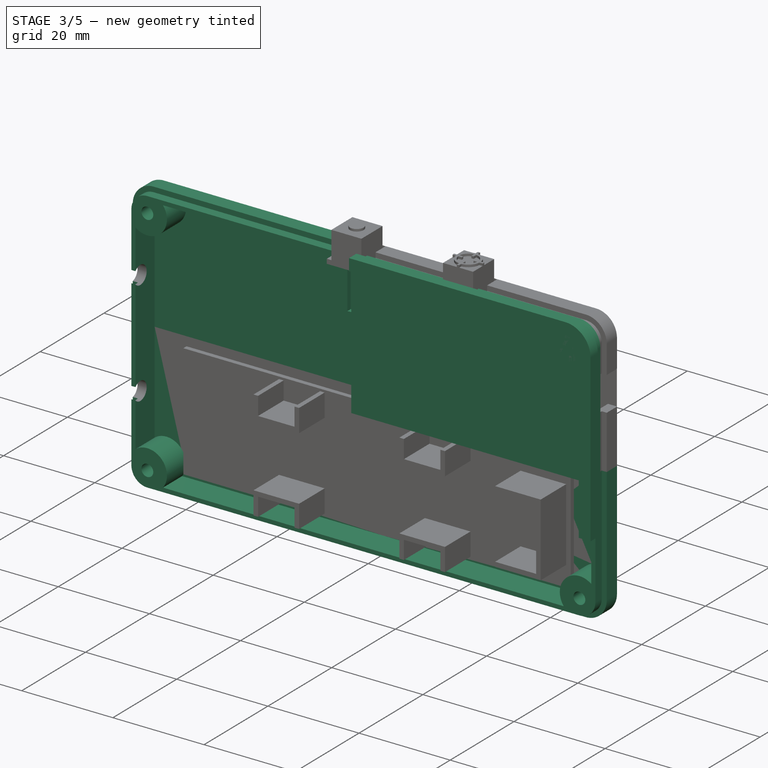
[diagram: stage 3 of 5 — iso view after this stage's code; geometry added in this stage tinted green]
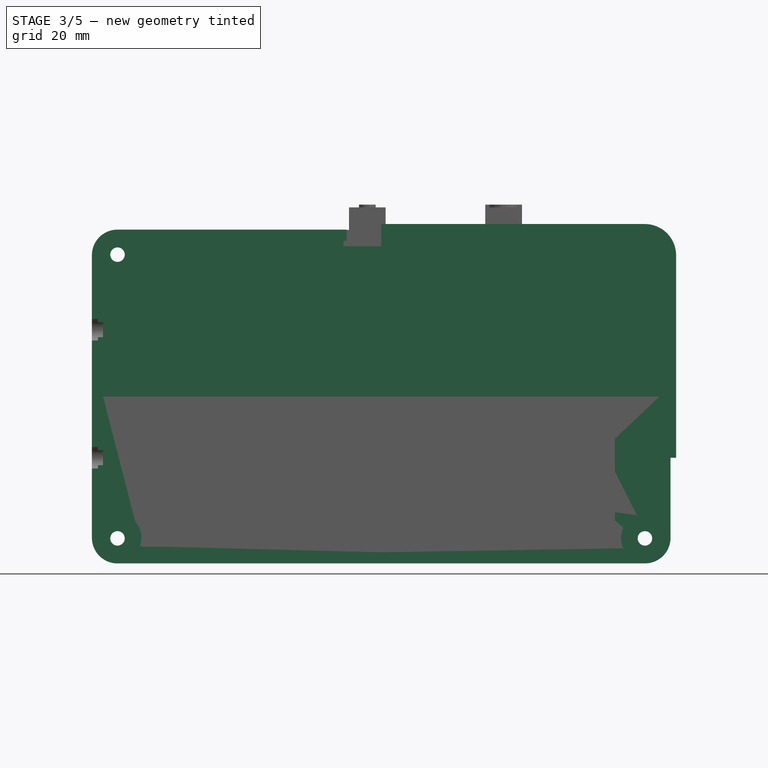
[diagram: stage 3 of 5 — front view after this stage's code; geometry added in this stage tinted green]
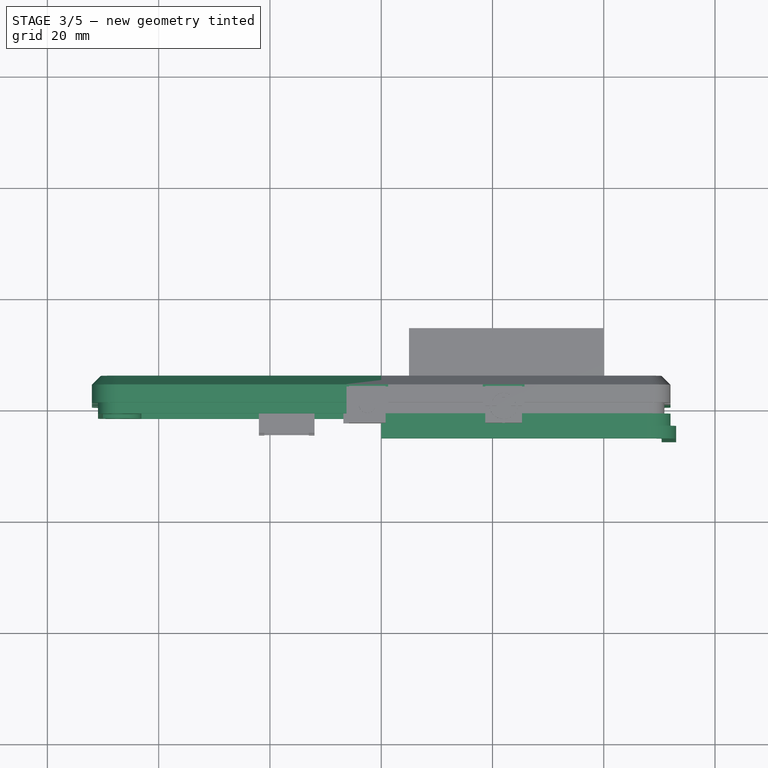
[diagram: stage 3 of 5 — top view after this stage's code; geometry added in this stage tinted green]
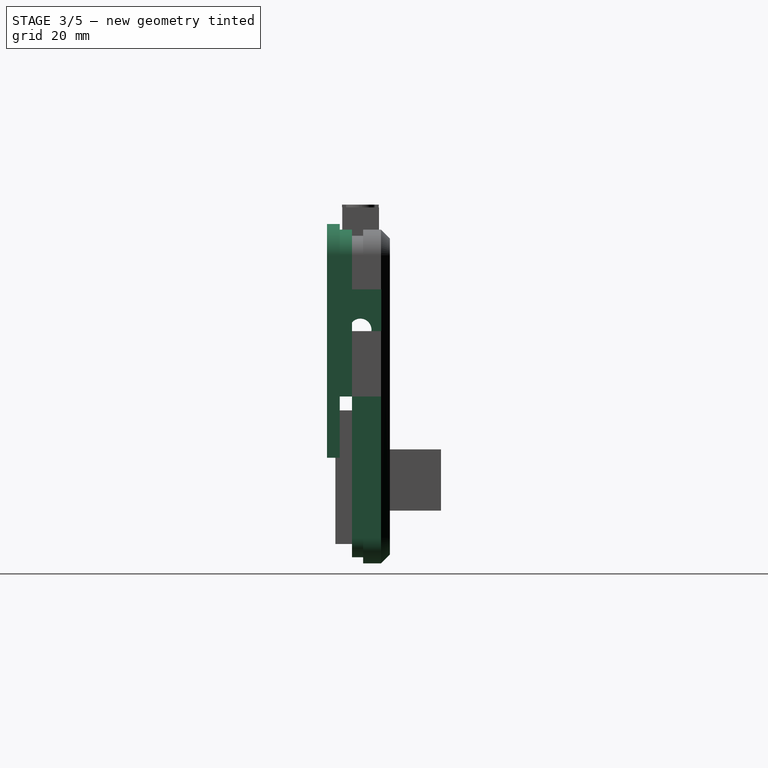
[diagram: stage 3 of 5 — right view after this stage's code; geometry added in this stage tinted green]
FEATURE [PartDesign::Body] Body001  label="switch001"
  BaseFeature = -> Fusion024
  Group = -> [Clone001]
  Origin = -> Origin001
  Placement = pos=(-22.5,0,38) rot=(0,0,1;0rad)
  Tip = -> Clone001
FEATURE [Sketcher::SketchObject] Sketch001
  FullyConstrained = true
  Placement = pos=(0,0,0) rot=(1,0,0;1.5708rad)
  expr: Constraints[24] = Spreadsheet.led_r
  expr: Constraints[25] = Spreadsheet.led_r + 1
  sketch-geometry (26):
    g0: LineSegment StartX=25.5 StartY=43 StartZ=0 EndX=17 EndY=43 EndZ=0
    g1: LineSegment StartX=17 StartY=43 StartZ=0 EndX=17 EndY=34 EndZ=0
    g2: LineSegment StartX=17 StartY=34 StartZ=0 EndX=25.5 EndY=34 EndZ=0
    g3: LineSegment StartX=25.5 StartY=34 StartZ=0 EndX=25.5 EndY=33 EndZ=0
    g4: LineSegment StartX=25.5 StartY=33 StartZ=0 EndX=16 EndY=33 EndZ=0
    g5: LineSegment StartX=16 StartY=33 StartZ=0 EndX=16 EndY=44 EndZ=0
    g6: LineSegment StartX=16 StartY=44 StartZ=0 EndX=25.5 EndY=44 EndZ=0
    g7: LineSegment StartX=25.5 StartY=44 StartZ=0 EndX=25.5 EndY=43 EndZ=0
    g8: Circle CenterX=25 CenterY=28 CenterZ=0 NormalX=0 NormalY=0 NormalZ=1 AngleXU=0 Radius=1.7
    g9: Circle CenterX=25 CenterY=28 CenterZ=0 NormalX=0 NormalY=0 NormalZ=1 AngleXU=0 Radius=2.7
    g10: LineSegment StartX=6.5 StartY=46.5 StartZ=0 EndX=6.5 EndY=38 EndZ=0
    g11: LineSegment StartX=6.5 StartY=38 StartZ=0 EndX=-2.5 EndY=38 EndZ=0
    g12: LineSegment StartX=-2.5 StartY=38 StartZ=0 EndX=-2.5 EndY=46.5 EndZ=0
    g13: LineSegment StartX=-2.5 StartY=46.5 StartZ=0 EndX=-3.5 EndY=46.5 EndZ=0
    g14: LineSegment StartX=-3.5 StartY=46.5 StartZ=0 EndX=-3.5 EndY=37 EndZ=0
    g15: LineSegment StartX=-3.5 StartY=37 StartZ=0 EndX=7.5 EndY=37 EndZ=0
    g16: LineSegment StartX=7.5 StartY=37 StartZ=0 EndX=7.5 EndY=46.5 EndZ=0
    g17: LineSegment StartX=7.5 StartY=46.5 StartZ=0 EndX=6.5 EndY=46.5 EndZ=0
    g18: LineSegment StartX=-18 StartY=46.5 StartZ=0 EndX=-18 EndY=38 EndZ=0
    g19: LineSegment StartX=-18 StartY=38 StartZ=0 EndX=-27 EndY=38 EndZ=0
    g20: LineSegment StartX=-27 StartY=38 StartZ=0 EndX=-27 EndY=46.5 EndZ=0
    g21: LineSegment StartX=-27 StartY=46.5 StartZ=0 EndX=-28 EndY=46.5 EndZ=0
    g22: LineSegment StartX=-28 StartY=46.5 StartZ=0 EndX=-28 EndY=37 EndZ=0
    g23: LineSegment StartX=-28 StartY=37 StartZ=0 EndX=-17 EndY=37 EndZ=0
    g24: LineSegment StartX=-17 StartY=37 StartZ=0 EndX=-17 EndY=46.5 EndZ=0
    g25: LineSegment StartX=-17 StartY=46.5 StartZ=0 EndX=-18 EndY=46.5 EndZ=0
  constraints (77):
    c: Horizontal(g0)
    c: Coincident(g0,g1)
    c: Vertical(g1)
    c: Coincident(g1,g2)
    c: Horizontal(g2)
    c: Coincident(g2,g3)
    c: Vertical(g3)
    c: Coincident(g3,g4)
    c: Horizontal(g4)
    c: Coincident(g4,g5)
    c: Vertical(g5)
    c: Coincident(g5,g6)
    c: Horizontal(g6)
    c: Coincident(g6,g7)
    c: Coincident(g7,g0)
    c: Vertical(g7)
    c: DistanceY(g7,g7) = 1
    c: DistanceY(g3,g3) = 1
    c: DistanceX(g5,g0) = 1
    c: DistanceX(g1,g0) = 8.5
    c: DistanceY(g1,g0) = 9
    c: DistanceX(g1,g-1) = -17
    c: Vertical(g2,g0)
    c: Coincident(g9,g8)
    c: Radius(g8) = 1.7
    c: Radius(g9) = 2.7
    c: DistanceX(g8,g-1) = -25
    c: DistanceY(g-1,g8) = 28
    c: DistanceY(g-1,g4) = 33
    c: Vertical(g10)
    c: Coincident(g10,g11)
    c: Horizontal(g11)
    c: Coincident(g11,g12)
    c: Vertical(g12)
    c: Coincident(g12,g13)
    c: Coincident(g13,g14)
    c: Vertical(g14)
    c: Coincident(g14,g15)
    c: Horizontal(g15)
    c: Coincident(g15,g16)
    c: Vertical(g16)
    c: Coincident(g16,g17)
    c: Coincident(g17,g10)
    c: Horizontal(g17)
    c: Horizontal(g13)
    c: DistanceX(g11,g11) = 9
    c: DistanceX(g15,g15) = 11
    c: DistanceY(g10,g10) = 8.5
    c: DistanceY(g-1,g16) = 46.5
    c: DistanceX(g11,g-1) = 2.5
    c: DistanceX(g13,g12) = 1
    c: DistanceY(g15,g10) = 1
    c: Horizontal(g12,g10)
    c: Vertical(g18)
    c: Coincident(g18,g19)
    c: Horizontal(g19)
    c: Coincident(g19,g20)
    c: Vertical(g20)
    c: Coincident(g20,g21)
    c: Coincident(g21,g22)
    c: Vertical(g22)
    c: Coincident(g22,g23)
    c: Horizontal(g23)
    c: Coincident(g23,g24)
    c: Vertical(g24)
    c: Coincident(g24,g25)
    c: Coincident(g25,g18)
    c: Horizontal(g25)
    c: Horizontal(g21)
    c: Equal(g11,g19) = 9
    c: Equal(g15,g23) = 11
    c: Equal(g10,g18) = 8.5
    c: DistanceX(g21,g20) = 1
    c: DistanceY(g23,g18) = 1
    c: Horizontal(g20,g18)
    c: DistanceX(g23,g-1) = 17
    c: DistanceY(g23,g-1) = -37
FEATURE [Part::Extrusion] Extrude001  label="align"
  Base = -> Sketch001
  Dir = (0,-1,2e-16)
  DirMode = 2
  FaceMakerClass = Part::FaceMakerBullseye
  LengthFwd = 0
  LengthRev = -1
  Placement = pos=(0,4.5,0) rot=(0,0,1;0rad)
  Solid = true
  Symmetric = false
FEATURE [PartDesign::Body] Body003  label="screw hole bottom002"
  BaseFeature = -> Revolve
  Group = -> [Clone003]
  Origin = -> Origin003
  Placement = pos=(27.4,-4.5,48.4) rot=(0,0,1;0rad)
  Tip = -> Clone003
FEATURE [Sketcher::SketchObject] Sketch004
  FullyConstrained = true
  Placement = pos=(0,-10,0) rot=(1,0,0;1.5708rad)
  expr: Constraints[0] = Spreadsheet.screw_r3 + 3
  expr: Constraints[11] = Spreadsheet.screw_r1
  sketch-geometry (4):
    g0: ArcOfCircle CenterX=27.4 CenterY=48.4 CenterZ=0 NormalX=0 NormalY=0 NormalZ=1 AngleXU=0 Radius=4.3 StartAngle=2.49226 EndAngle=5.36172
    g1: ArcOfCircle CenterX=27.4 CenterY=48.4 CenterZ=0 NormalX=0 NormalY=0 NormalZ=1 AngleXU=0 Radius=2.6 StartAngle=1e-16 EndAngle=1.5708
    g2: LineSegment StartX=23.9751 StartY=51 StartZ=0 EndX=27.4 EndY=51 EndZ=0
    g3: LineSegment StartX=30 StartY=44.9751 StartZ=0 EndX=30 EndY=48.4 EndZ=0
  constraints (13):
    c: Radius(g0) = 4.3
    c: DistanceX(g0,g-1) = -27.4
    c: Coincident(g1,g0)
    c: Vertical(g0,g1)
    c: Horizontal(g0,g1)
    c: Coincident(g2,g0)
    c: Coincident(g2,g1)
    c: Horizontal(g2)
    c: Coincident(g3,g0)
    c: Coincident(g3,g1)
    c: Vertical(g3)
    c: Radius(g1) = 2.6
    c: DistanceY(g-1,g1) = 51
FEATURE [Part::Extrusion] Extrude002  label="screw hole top"
  Base = -> Sketch004
  Dir = (0,-1,2e-16)
  DirMode = 2
  FaceMakerClass = Part::FaceMakerBullseye
  LengthFwd = 0
  LengthRev = 6
  Placement = pos=(0,8.5,0) rot=(0,0,1;0rad)
  Solid = true
  Symmetric = false
FEATURE [Part::Extrusion] Extrude040  label="bottom003"
  Base = -> Sketch028
  Dir = (0,-1,2e-16)
  DirMode = 2
  FaceMakerClass = Part::FaceMakerBullseye
  LengthFwd = 3
  LengthRev = 0
  Placement = pos=(0,8.5,0) rot=(0,0,1;0rad)
  Solid = true
  Symmetric = false
FEATURE [Sketcher::SketchObject] Sketch031
  FullyConstrained = false
  Placement = pos=(0,-10,0) rot=(1,0,0;1.5708rad)
  expr: Constraints[9] = Spreadsheet.w / 2 + 2
  expr: Constraints[10] = Spreadsheet.height / 2 + 2
  expr: Constraints[11] = Spreadsheet.screw_r1 + 2
  sketch-geometry (5):
    g0: ArcOfCircle CenterX=27.4 CenterY=48.4 CenterZ=0 NormalX=0 NormalY=0 NormalZ=1 AngleXU=0 Radius=4.6 StartAngle=0 EndAngle=1.5708
    g1: LineSegment StartX=32 StartY=48.4 StartZ=0 EndX=32 EndY=23 EndZ=0
    g2: LineSegment StartX=27.4 StartY=53 StartZ=0 EndX=-20 EndY=53 EndZ=0
    g3: LineSegment StartX=-20 StartY=53 StartZ=0 EndX=-20 EndY=23 EndZ=0
    g4: LineSegment StartX=-20 StartY=23 StartZ=0 EndX=32 EndY=23 EndZ=0
  constraints (13):
    c: Horizontal(g0,g0)
    c: Vertical(g0,g0)
    c: Tangent(g0,g1) = 1.5708
    c: Tangent(g0,g2) = -1.5708
    c: Coincident(g2,g3)
    c: Vertical(g3)
    c: Coincident(g3,g4)
    c: Coincident(g4,g1)
    c: Horizontal(g4)
    c: DistanceX(g3,g1) = 52
    c: DistanceY(g3,g2) = 30
    c: Radius(g0) = 4.6
    c: DistanceX(g-1,g1) = 32
FEATURE [Part::Extrusion] Extrude041  label="bottom002"
  Base = -> Sketch031
  Dir = (0,-1,2e-16)
  DirMode = 2
  FaceMakerClass = Part::FaceMakerBullseye
  LengthFwd = 0.8
  LengthRev = 0
  Placement = pos=(0,5.5,0) rot=(0,0,1;0rad)
  Solid = true
  Symmetric = false
FEATURE [Sketcher::SketchObject] Sketch032
  FullyConstrained = true
  Placement = pos=(0,-10,0) rot=(1,0,0;1.5708rad)
  expr: Constraints[0] = Spreadsheet.screw_r1
  sketch-geometry (1):
    g0: Circle CenterX=27.4 CenterY=48.5 CenterZ=0 NormalX=0 NormalY=0 NormalZ=1 AngleXU=0 Radius=2.6
  constraints (3):
    c: Radius(g0) = 2.6
    c: DistanceX(g0,g-1) = -27.4
    c: DistanceY(g-1,g0) = 48.5
FEATURE [Part::Extrusion] Extrude043  label="bottom screw hole"
  Base = -> Sketch032
  Dir = (0,-1,2e-16)
  DirMode = 2
  FaceMakerClass = Part::FaceMakerBullseye
  LengthFwd = 0.8
  LengthRev = 0
  Placement = pos=(0,5.5,0) rot=(0,0,1;0rad)
  Solid = true
  Symmetric = false
FEATURE [Part::MultiFuse] Fusion028  label="top005"
  Shapes = -> [Extrude037,Extrude039,Extrude042,Extrude002]
FEATURE [Sketcher::SketchObject] Sketch033
  FullyConstrained = true
  Placement = pos=(0,0,0) rot=(0.57735,0.57735,0.57735;2.0944rad)
  sketch-geometry (5):
    g0: LineSegment StartX=-5.3 StartY=51.4 StartZ=0 EndX=-3.7 EndY=53 EndZ=0
    g1: LineSegment StartX=-3.7 StartY=53 StartZ=0 EndX=-3.7 EndY=54 EndZ=0
    g2: LineSegment StartX=-3.7 StartY=54 StartZ=0 EndX=-6 EndY=54 EndZ=0
    g3: LineSegment StartX=-6 StartY=54 StartZ=0 EndX=-6 EndY=51.4 EndZ=0
    g4: LineSegment StartX=-6 StartY=51.4 StartZ=0 EndX=-5.3 EndY=51.4 EndZ=0
  constraints (15):
    c: DistanceX(g0,g0) = 1.6
    c: DistanceY(g0,g0) = 1.6
    c: Coincident(g0,g1)
    c: Coincident(g1,g2)
    c: Horizontal(g2)
    c: Coincident(g2,g3)
    c: Vertical(g3)
    c: Coincident(g3,g4)
    c: Coincident(g4,g0)
    c: Horizontal(g4)
    c: Vertical(g1)
    c: DistanceX(g3,g0) = 0.7
    c: DistanceY(g1,g1) = 1
    c: DistanceX(g0,g-1) = 5.3
    c: DistanceY(g-1,g0) = 53
FEATURE [Sketcher::SketchObject] Sketch034
  FullyConstrained = true
  Placement = pos=(0,-10,0) rot=(1,0,0;1.5708rad)
  expr: Constraints[4] = Spreadsheet.screw_r1 + 2
  expr: Constraints[6] = Spreadsheet.w / 2 + 2
  sketch-geometry (3):
    g0: ArcOfCircle CenterX=27.4 CenterY=48.4 CenterZ=0 NormalX=0 NormalY=0 NormalZ=1 AngleXU=0 Radius=4.6 StartAngle=0 EndAngle=1.5708
    g1: LineSegment StartX=32 StartY=48.4 StartZ=0 EndX=32 EndY=12 EndZ=0
    g2: LineSegment StartX=27.4 StartY=53 StartZ=0 EndX=-20 EndY=53 EndZ=0
  constraints (9):
    c: Horizontal(g0,g0)
    c: Vertical(g0,g0)
    c: Tangent(g0,g1) = 1.5708
    c: Tangent(g0,g2) = -1.5708
    c: Radius(g0) = 4.6
    c: DistanceX(g-1,g1) = 32
    c: DistanceX(g2,g1) = 52
    c: DistanceY(g-1,g1) = 12
    c: DistanceY(g1,g2) = 41
FEATURE [Part::Sweep] Sweep
  Frenet = false
  Sections = -> [Sketch033]
  Solid = true
  Spine = -> Sketch034
  Transition = 1
FEATURE [Part::MultiFuse] Fusion
  Shapes = -> [Extrude043,Sweep]
FEATURE [Part::Cut] Cut024  label="top"
  Base = -> Fusion028
  Tool = -> Fusion030
FEATURE [Part::Mirroring] Part__Mirroring  label="top (Mirror #1)"
  Base = (0,0,23)
  Normal = (0,0,1)
  Source = -> Cut024
FEATURE [Part::Mirroring] Part__Mirroring002  label="top (Mirror #3)"
  Base = (-20,1,0)
  Normal = (1,0,0)
  Source = -> Part__Mirroring
FEATURE [Part::Mirroring] Part__Mirroring003  label="top (Mirror #4)"
  Base = (-20,0,0)
  Normal = (1,0,0)
  Source = -> Cut024
FEATURE [Part::MultiFuse] Fusion032  label="top006"
  Shapes = -> [Part__Mirroring003,Cut024,Part__Mirroring,Part__Mirroring002]
FEATURE [Part::Cut] Cut025  label="top007"
  Base = -> Fusion032
  Tool = -> Fusion033
FEATURE [Part::Compound] Compound004  label="top008"
  Links = -> [Cut025,Extrude001]
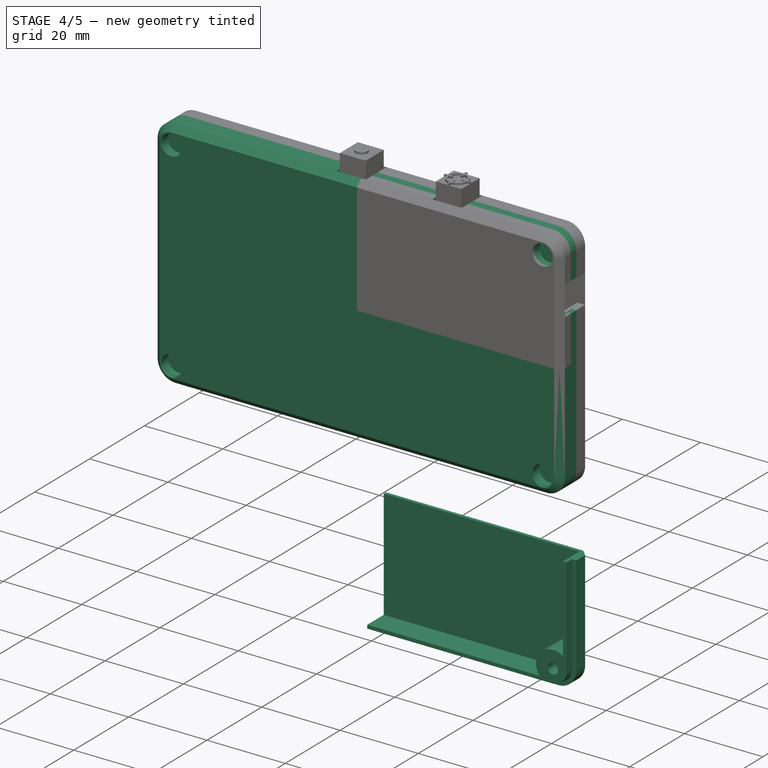
[diagram: stage 4 of 5 — iso view after this stage's code; geometry added in this stage tinted green]
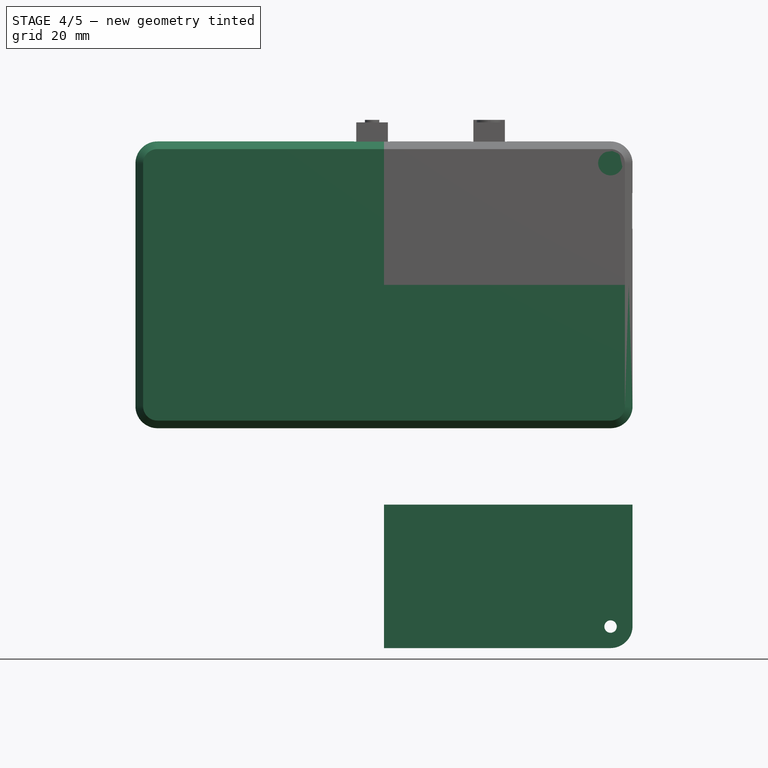
[diagram: stage 4 of 5 — front view after this stage's code; geometry added in this stage tinted green]
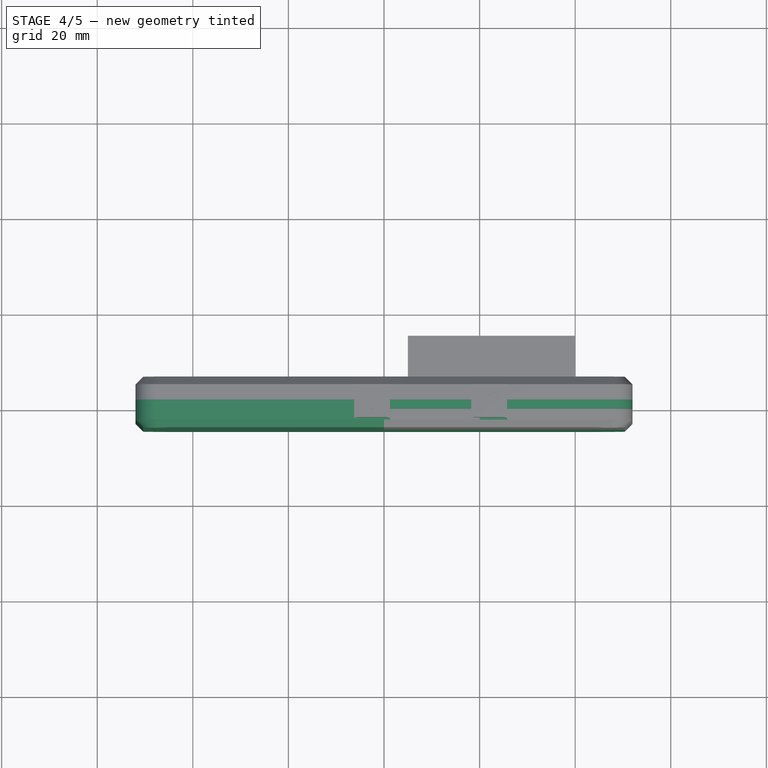
[diagram: stage 4 of 5 — top view after this stage's code; geometry added in this stage tinted green]
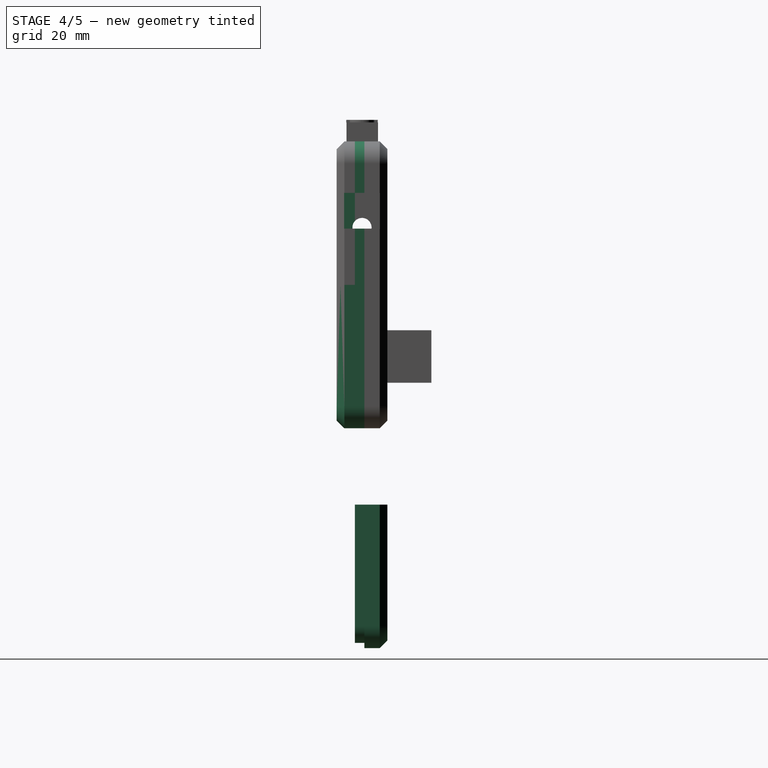
[diagram: stage 4 of 5 — right view after this stage's code; geometry added in this stage tinted green]
FEATURE [Sketcher::SketchObject] Sketch002  label="clamshell"
  FullyConstrained = false
  Placement = pos=(0,4.5,0) rot=(1,0,0;1.5708rad)
  sketch-geometry (16):
    g0: LineSegment StartX=-18 StartY=29 StartZ=0 EndX=-18 EndY=-5 EndZ=0
    g1: LineSegment StartX=-18 StartY=-5 StartZ=0 EndX=26 EndY=-5 EndZ=0
    g2: LineSegment StartX=26 StartY=-5 StartZ=0 EndX=26 EndY=29 EndZ=0
    g3: LineSegment StartX=28 StartY=31 StartZ=0 EndX=28 EndY=-7 EndZ=0
    g4: LineSegment StartX=28 StartY=-7 StartZ=0 EndX=-20 EndY=-7 EndZ=0
    g5: LineSegment StartX=-20 StartY=-7 StartZ=0 EndX=-20 EndY=31 EndZ=0
    g6: LineSegment StartX=-20 StartY=31 StartZ=0 EndX=-5 EndY=31 EndZ=0
    g7: LineSegment StartX=-5 StartY=31 StartZ=0 EndX=-5 EndY=24.5 EndZ=0
    g8: LineSegment StartX=-5 StartY=24.5 StartZ=0 EndX=-7 EndY=24.5 EndZ=0
    g9: LineSegment StartX=-7 StartY=24.5 StartZ=0 EndX=-7 EndY=29 EndZ=0
    g10: LineSegment StartX=-7 StartY=29 StartZ=0 EndX=-18 EndY=29 EndZ=0
    g11: LineSegment StartX=28 StartY=31 StartZ=0 EndX=5 EndY=31 EndZ=0
    g12: LineSegment StartX=5 StartY=31 StartZ=0 EndX=5 EndY=24.5 EndZ=0
    g13: LineSegment StartX=5 StartY=24.5 StartZ=0 EndX=7 EndY=24.5 EndZ=0
    g14: LineSegment StartX=7 StartY=24.5 StartZ=0 EndX=7 EndY=29 EndZ=0
    g15: LineSegment StartX=7 StartY=29 StartZ=0 EndX=26 EndY=29 EndZ=0
  constraints (47):
    c: Vertical(g0)
    c: Coincident(g0,g1)
    c: Horizontal(g1)
    c: Coincident(g1,g2)
    c: Vertical(g2)
    c: DistanceY(g0,g2) = 34
    c: DistanceY(g-1,g0) = 29
    c: Coincident(g3,g4)
    c: Coincident(g4,g5)
    c: Horizontal(g4)
    c: Vertical(g3)
    c: Vertical(g5)
    c: Coincident(g5,g6)
    c: Horizontal(g6)
    c: Coincident(g6,g7)
    c: Vertical(g7)
    c: Coincident(g7,g8)
    c: Horizontal(g8)
    c: Coincident(g8,g9)
    c: Vertical(g9)
    c: Coincident(g9,g10)
    c: Coincident(g10,g0)
    c: Horizontal(g10)
    c: Coincident(g3,g11)
    c: Horizontal(g11)
    c: Coincident(g11,g12)
    c: Vertical(g12)
    c: Coincident(g12,g13)
    c: Horizontal(g13)
    c: Coincident(g13,g14)
    c: Vertical(g14)
    c: Coincident(g14,g15)
    c: Coincident(g15,g2)
    c: Horizontal(g15)
    c: Horizontal(g12,g7)
    c: DistanceX(g12,g13) = 2
    c: DistanceX(g8,g7) = 2
    c: DistanceY(g14,g11) = 2
    c: DistanceY(g9,g6) = 2
    c: DistanceX(g6,g11) = 10
    c: DistanceY(g13,g14) = 4.5
    c: Horizontal(g6,g11)
    c: DistanceX(g5,g0) = 2
    c: DistanceX(g2,g3) = 2
    c: DistanceY(g3,g1) = 2
    c: DistanceX(g0,g-1) = 18
    c: DistanceX(g-1,g1) = 26
FEATURE [Spreadsheet::Sheet] Spreadsheet
  cells = A1=screw_r1; B1(screw_r1)=2.6; A2=screw_r2; B2(screw_r2)=1.6; A3=screw_r3; B3(screw_r3)=1.3; A4=w; B4(w)=100; A5=h; B5(height)=56; A6=led_r; B6(led_r)=1.7
FEATURE [Sketcher::SketchObject] Sketch003
  FullyConstrained = true
  expr: Constraints[8] = Spreadsheet.screw_r2
  expr: Constraints[9] = Spreadsheet.screw_r1
  sketch-geometry (8):
    g0: LineSegment StartX=1.6 StartY=3 StartZ=0 EndX=1.6 EndY=2 EndZ=0
    g1: LineSegment StartX=2.6 StartY=0 StartZ=0 EndX=4.6 EndY=0 EndZ=0
    g2: LineSegment StartX=4.6 StartY=0 StartZ=0 EndX=4.6 EndY=3 EndZ=0
    g3: LineSegment StartX=4.6 StartY=3 StartZ=0 EndX=1.6 EndY=3 EndZ=0
    g4: LineSegment StartX=1.6 StartY=2 StartZ=0 EndX=0 EndY=2 EndZ=0
    g5: LineSegment StartX=0 StartY=2 StartZ=0 EndX=0 EndY=1.8 EndZ=0
    g6: LineSegment StartX=0 StartY=1.8 StartZ=0 EndX=2.6 EndY=1.8 EndZ=0
    g7: LineSegment StartX=2.6 StartY=1.8 StartZ=0 EndX=2.6 EndY=0 EndZ=0
  constraints (24):
    c: Vertical(g0)
    c: PointOnObject(g1,g-1)
    c: Horizontal(g1)
    c: Coincident(g1,g2)
    c: Vertical(g2)
    c: Coincident(g2,g3)
    c: Coincident(g3,g0)
    c: Horizontal(g3)
    c: DistanceX(g-1,g0) = 1.6
    c: DistanceX(g-1,g1) = 2.6
    c: DistanceX(g1,g1) = 2
    c: DistanceY(g0,g0) = 1
    c: Coincident(g0,g4)
    c: Horizontal(g4)
    c: Coincident(g4,g5)
    c: PointOnObject(g5,g-2)
    c: Vertical(g5)
    c: Coincident(g5,g6)
    c: Horizontal(g6)
    c: Coincident(g7,g6)
    c: Coincident(g7,g1)
    c: Vertical(g7)
    c: DistanceY(g5,g4) = 0.2
    c: DistanceY(g1,g0) = 2
FEATURE [Part::Revolution] Revolve  label="screw hole bottom"
  Angle = 360
  Axis = (0,1,0)
  Base = (0,0,0)
  FaceMakerClass = Part::FaceMakerBullseye
  Solid = true
  Source = -> Sketch003
  Symmetric = false
FEATURE [PartDesign::FeatureBase] Clone003
  BaseFeature = -> Revolve
FEATURE [Sketcher::SketchObject] Sketch027  label="power icon"
  FullyConstrained = false
  Placement = pos=(0,0,20) rot=(0,0,1;0rad)
  sketch-geometry (6):
    g0: Circle CenterX=0 CenterY=0 CenterZ=0 NormalX=0 NormalY=0 NormalZ=1 AngleXU=0 Radius=2.8
    g1: LineSegment StartX=-0.25 StartY=1.3 StartZ=0 EndX=0.25 EndY=1.3 EndZ=0
    g2: LineSegment StartX=0.25 StartY=1.3 StartZ=0 EndX=0.25 EndY=-1.3 EndZ=0
    g3: LineSegment StartX=0.25 StartY=-1.3 StartZ=0 EndX=-0.25 EndY=-1.3 EndZ=0
    g4: LineSegment StartX=-0.25 StartY=-1.3 StartZ=0 EndX=-0.25 EndY=1.3 EndZ=0
    g5: Circle CenterX=0 CenterY=0 CenterZ=0 NormalX=0 NormalY=0 NormalZ=1 AngleXU=0 Radius=3.3
  constraints (12):
    c: Coincident(g1,g2)
    c: Coincident(g2,g3)
    c: Coincident(g3,g4)
    c: Coincident(g4,g1)
    c: Horizontal(g1)
    c: Horizontal(g3)
    c: Vertical(g2)
    c: Vertical(g4)
    c: DistanceX(g3,g1) = 0.5
    c: DistanceY(g3,g1) = 2.6
    c: Radius(g5) = 3.3
    c: Radius(g0) = 2.8
FEATURE [Part::Extrusion] Extrude036  label="power icon001"
  Base = -> Sketch027
  Dir = (0,0,1)
  DirMode = 2
  FaceMakerClass = Part::FaceMakerBullseye
  LengthFwd = 0.5
  LengthRev = 0
  Placement = pos=(0,0,-13) rot=(0,0,1;3.14159rad)
  Solid = true
  Symmetric = false
FEATURE [Part::Box] Box087  label="battery"
  AttacherType = Attacher::AttachEngine3D
  Height = 34
  Length = 30
  Placement = pos=(-29,3.5,21) rot=(0,-1,0;1.5708rad)
  Width = 1
FEATURE [Part::Extrusion] Extrude038  label="bottom004"
  Base = -> Sketch030
  Dir = (0,-1,2e-16)
  DirMode = 2
  FaceMakerClass = Part::FaceMakerBullseye
  LengthFwd = 2
  LengthRev = 0
  Placement = pos=(0,10.5,0) rot=(0,0,1;0rad)
  Solid = true
  Symmetric = false
FEATURE [Part::MultiFuse] Fusion029  label="bottom005"
  Shapes = -> [Extrude041,Extrude040,Extrude038,Body003]
FEATURE [Part::Cut] Cut  label="bottom"
  Base = -> Fusion029
  Tool = -> Fusion
FEATURE [Part::Mirroring] Part__Mirroring001  label="top (Mirror #2)"
  Base = (0,0,0)
  Normal = (0,0,1)
  Source = -> Cut024
FEATURE [Part::Mirroring] Part__Mirroring004  label="bottom (Mirror #5)"
  Base = (0,0,23)
  Normal = (0,0,1)
  Source = -> Cut
FEATURE [Part::Mirroring] Part__Mirroring005  label="bottom (Mirror #6)"
  Base = (-20,0,0)
  Normal = (1,0,0)
  Source = -> Cut
FEATURE [Part::Mirroring] Part__Mirroring006  label="bottom (Mirror #7)"
  Base = (0,0,23)
  Normal = (0,0,1)
  Source = -> Part__Mirroring005
FEATURE [Part::MultiFuse] Fusion031  label="bottom006"
  Shapes = -> [Part__Mirroring004,Cut,Part__Mirroring006,Part__Mirroring005]
FEATURE [Part::Cut] Cut026  label="bottom007"
  Base = -> Fusion031
  Tool = -> Fusion033
FEATURE [Part::Compound] Compound  label="bottom008"
  Links = -> [Cut026,Extrude048]
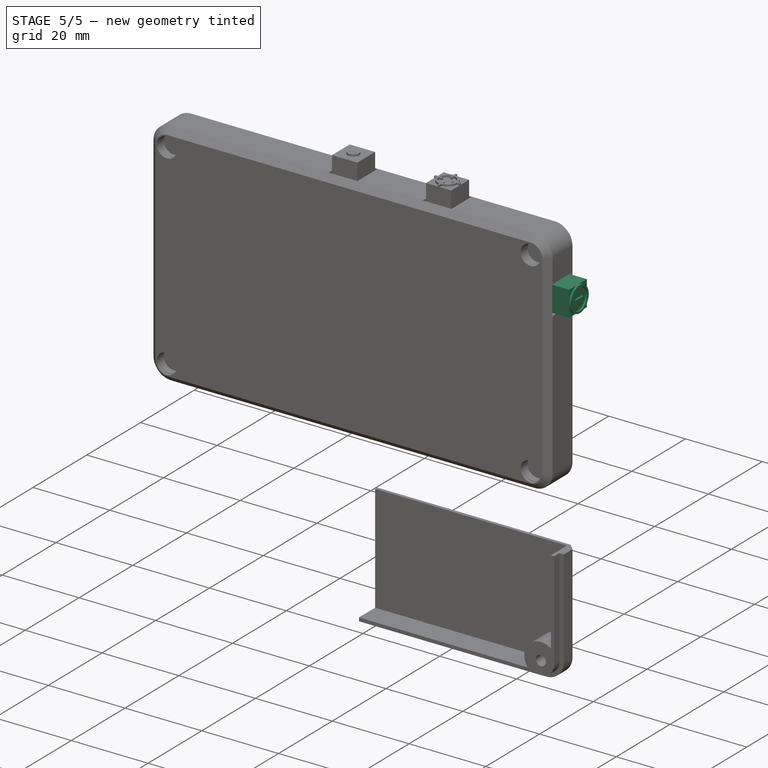
[diagram: stage 5 of 5 — iso view after this stage's code; geometry added in this stage tinted green]
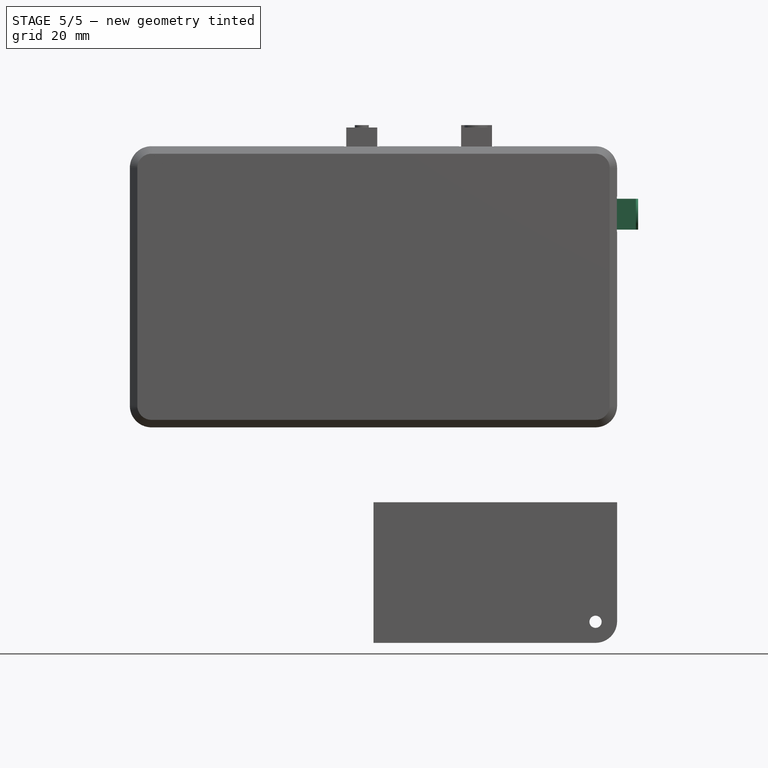
[diagram: stage 5 of 5 — front view after this stage's code; geometry added in this stage tinted green]
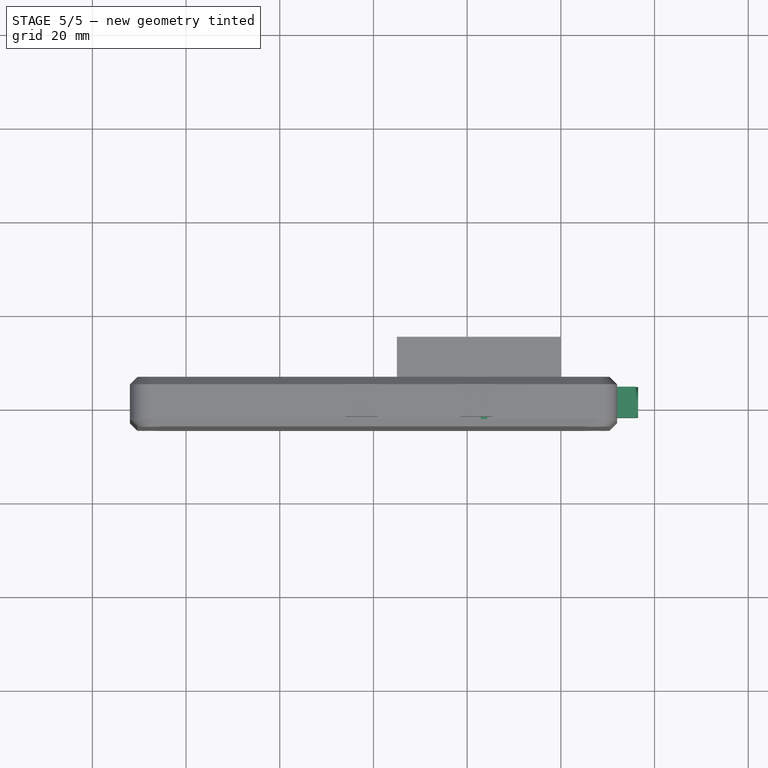
[diagram: stage 5 of 5 — top view after this stage's code; geometry added in this stage tinted green]
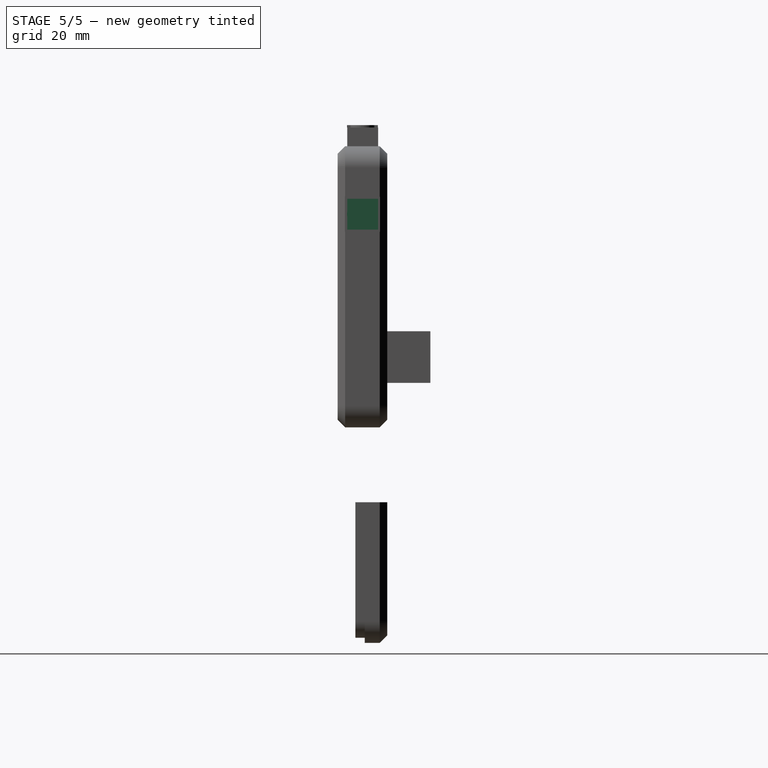
[diagram: stage 5 of 5 — right view after this stage's code; geometry added in this stage tinted green]
FEATURE [Part::Box] Box074  label="Cube"
  AttacherType = Attacher::AttachEngine3D
  Height = 8.5
  Length = 8.5
  Placement = pos=(-4.25,-4.25,0) rot=(0,0,1;0rad)
  Width = 8.5
FEATURE [Part::Box] Box075  label="plunger"
  AttacherType = Attacher::AttachEngine3D
  Height = 5.5
  Length = 4
  Placement = pos=(-2,-2,5.7) rot=(0,0,1;0rad)
  Width = 4
FEATURE [Part::Box] Box076  label="pins"
  AttacherType = Attacher::AttachEngine3D
  Height = 3.5
  Length = 8.5
  Placement = pos=(-4.25,-4.25,-3.5) rot=(0,0,1;0rad)
  Width = 8.5
FEATURE [Part::Box] Box078  label="plunger001"
  AttacherType = Attacher::AttachEngine3D
  Height = 3
  Length = 2
  Placement = pos=(-1,-1.5,11.2) rot=(0,0,1;0rad)
  Width = 3
FEATURE [Part::MultiFuse] Fusion024  label="switch master"
  Shapes = -> [Box074,Box075,Box076,Box078]
FEATURE [PartDesign::FeatureBase] Clone
  BaseFeature = -> Fusion024
FEATURE [PartDesign::Body] Body  label="switch002"
  BaseFeature = -> Fusion024
  Group = -> [Clone]
  Origin = -> Origin
  Placement = pos=(2,0,38) rot=(0,0,1;0rad)
  Tip = -> Clone
FEATURE [PartDesign::FeatureBase] Clone001
  BaseFeature = -> Fusion024
FEATURE [PartDesign::FeatureBase] Clone004
  BaseFeature = -> Fusion024
FEATURE [PartDesign::Body] Body004  label="switch"
  BaseFeature = -> Fusion024
  Group = -> [Clone004]
  Origin = -> Origin004
  Placement = pos=(17,0,38.5) rot=(0,1,0;1.5708rad)
  Tip = -> Clone004
FEATURE [Part::Box] Box085  label="sub cap"
  AttacherType = Attacher::AttachEngine3D
  Height = 4.5
  Length = 3.5
  Placement = pos=(-1.75,-1.25,0) rot=(0,0,1;0rad)
  Width = 2.5
FEATURE [Part::Box] Box084  label="cap001"
  AttacherType = Attacher::AttachEngine3D
  Height = 7
  Length = 6.6
  Placement = pos=(-3.3,-3.3,11) rot=(0,0,1;0rad)
  Width = 6.6
FEATURE [Part::Box] Box083  label="cap"
  AttacherType = Attacher::AttachEngine3D
  Height = 1
  Length = 6.6
  Placement = pos=(-3.3,-4.3,11) rot=(0,0,1;0rad)
  Width = 8.6
FEATURE [Part::MultiFuse] Fusion023
  Shapes = -> [Box084,Box083]
FEATURE [Part::Cut] Cut022  label="switch cap master"
  Base = -> Fusion023
  Placement = pos=(0,0,0) rot=(0,0,-1;1.5708rad)
  Tool = -> Box085
FEATURE [Part::Compound] Compound003  label="power"
  Links = -> [Cut023,Extrude036]
  Placement = pos=(29,0,38.5) rot=(0,1,0;1.5708rad)
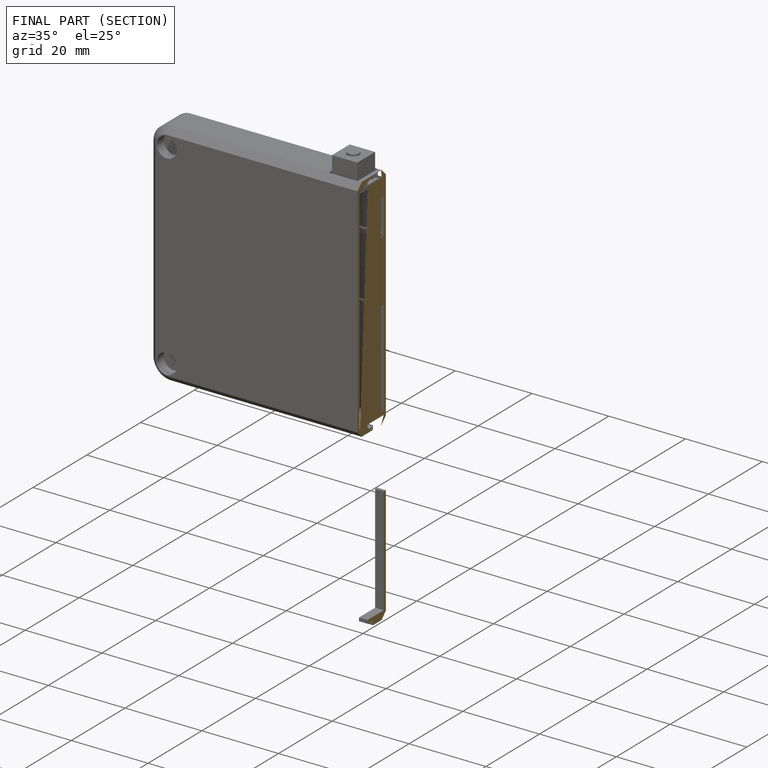
[diagram: finished part — half-section view (interior)]
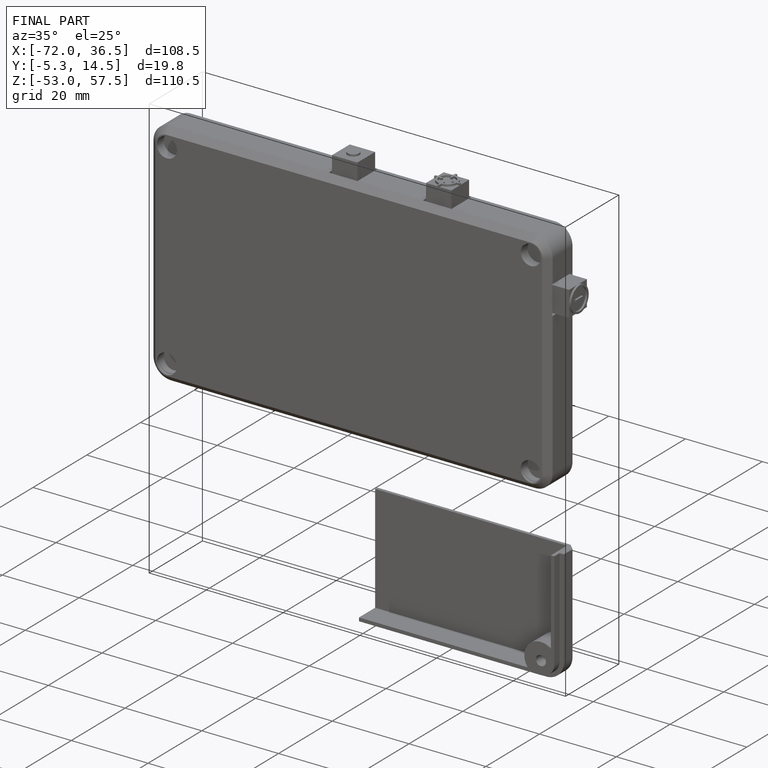
[diagram: finished part — iso view with bounding-box wireframe]
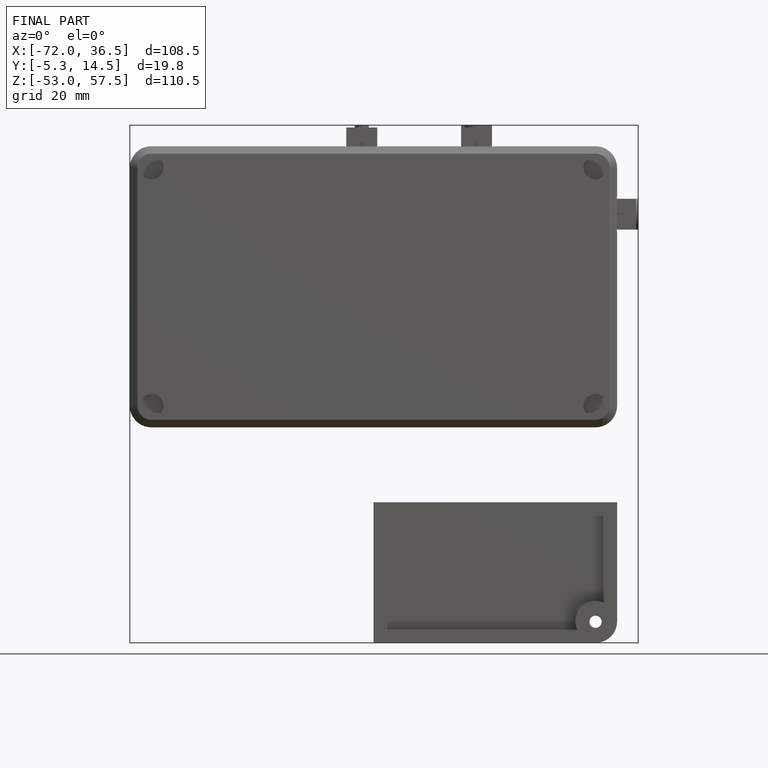
[diagram: finished part — front view with bounding-box wireframe]
